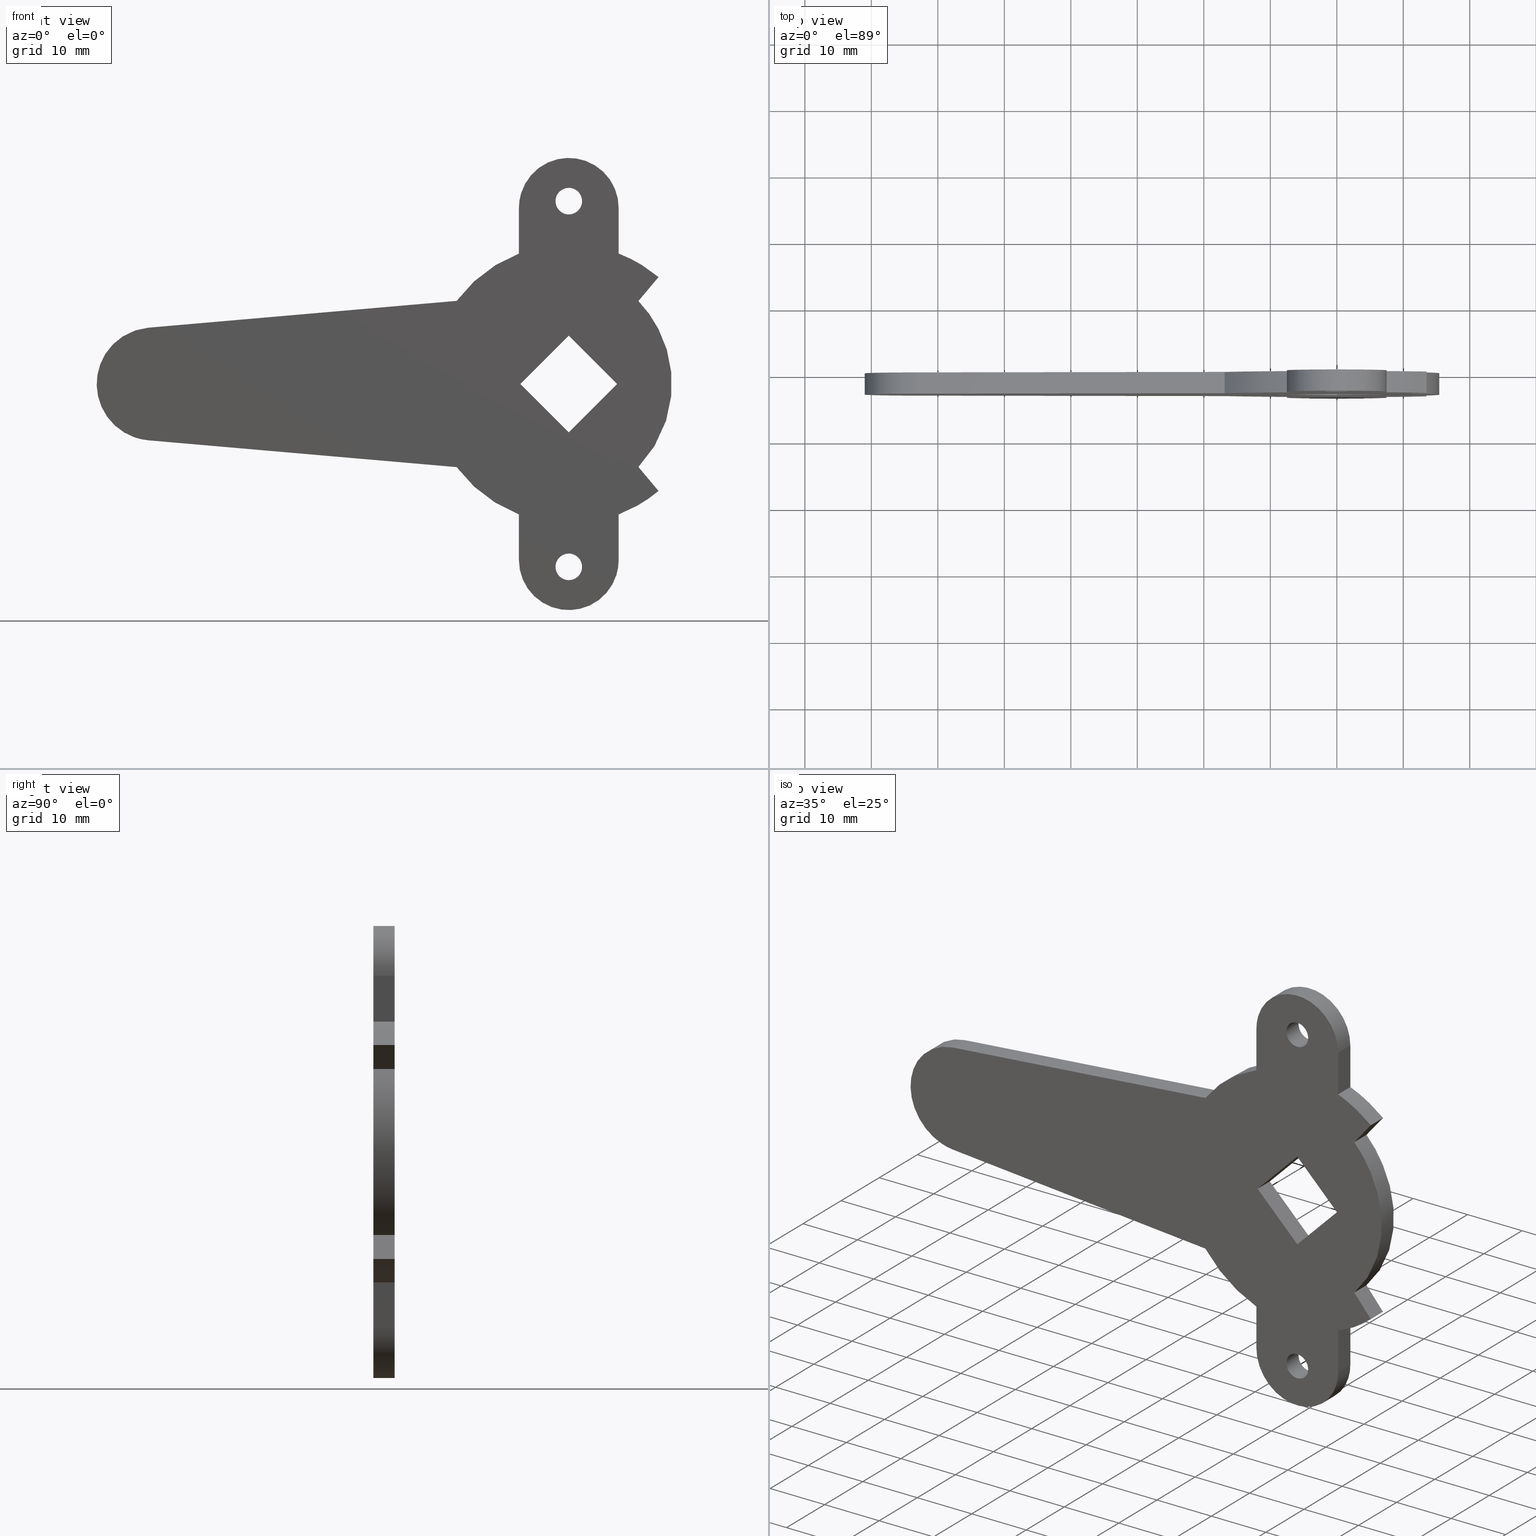
[diagram: canonical four-view strip — front | top / right | iso, engineering-drawing reading convention]
A machine part, canonical four-view strip (front | top / right | iso — engineering-drawing reading convention). The complete STEP part file that produces these views, byte-faithful:
ISO-10303-21;
HEADER;
/****************************************************************
 * Generated by software with PDE/Lib inside                    *
 * PDElib Version 4.4.1-0003, patched  Thursday August 19 11:58 *
 * International Technegroup Inc. (www.iti-oh.com)              *
 ****************************************************************/
FILE_DESCRIPTION((''),'2;1');
FILE_NAME('','2005-10-12T14:38:55',(''),(''),'','CADfix','');
FILE_SCHEMA(('AUTOMOTIVE_DESIGN'));
ENDSEC;
DATA;
#5=APPLICATION_CONTEXT('automotive design');
#6=APPLICATION_PROTOCOL_DEFINITION('Draft International Standard','automotive_design',1998,#5);
#7=PRODUCT_CONTEXT('None',#5,'mechanical');
#8=PRODUCT('cam','','None',(#7));
#9=PRODUCT_RELATED_PRODUCT_CATEGORY('part','description',(#8));
#10=PRODUCT_DEFINITION_FORMATION('None','None',#8);
#11=PRODUCT_DEFINITION_CONTEXT('part definition',#5,'design');
#12=PRODUCT_DEFINITION('None','None',#10,#11);
#18=(NAMED_UNIT(*)PLANE_ANGLE_UNIT()SI_UNIT($,.RADIAN.));
#19=DIMENSIONAL_EXPONENTS(0.0,0.0,0.0,0.0,0.0,0.0,0.0);
#20=PLANE_ANGLE_MEASURE_WITH_UNIT(PLANE_ANGLE_MEASURE(0.017453292500000),#18);
#24=(CONVERSION_BASED_UNIT('DEGREE',#20)NAMED_UNIT(#19)PLANE_ANGLE_UNIT());
#28=(NAMED_UNIT(*)SI_UNIT($,.STERADIAN.)SOLID_ANGLE_UNIT());
#32=(LENGTH_UNIT()NAMED_UNIT(*)SI_UNIT(.MILLI.,.METRE.));
#34=UNCERTAINTY_MEASURE_WITH_UNIT(LENGTH_MEASURE(0.001000000000000),#32,'DISTANCE_ACCURACY_VALUE','');
#36=(GEOMETRIC_REPRESENTATION_CONTEXT(3)GLOBAL_UNCERTAINTY_ASSIGNED_CONTEXT((#34))GLOBAL_UNIT_ASSIGNED_CONTEXT((#24,#28,#32))REPRESENTATION_CONTEXT('None','None'));
#37=AXIS2_PLACEMENT_3D('',#38,#39,#40);
#38=CARTESIAN_POINT('',(0.0,0.0,0.0));
#39=DIRECTION('',(0.0,0.0,1.0));
#40=DIRECTION('',(1.0,0.0,0.0));
#41=ADVANCED_BREP_SHAPE_REPRESENTATION('',(#37,#1277),#36);
#42=PRODUCT_DEFINITION_SHAPE('','',#12);
#43=SHAPE_DEFINITION_REPRESENTATION(#42,#41);
#44=CARTESIAN_POINT('',(-1.993834667466255,-3.279997950000036,27.656918191455691));
#45=CARTESIAN_POINT('',(-1.836916476010564,-3.279997950000036,29.650752858921944));
#46=CARTESIAN_POINT('',(0.156918191455691,-3.279997950000036,29.493834667466260));
#47=CARTESIAN_POINT('',(2.150752858921946,-3.279997950000036,29.336916476010572));
#48=CARTESIAN_POINT('',(1.993834667466255,-3.279997950000036,27.343081808544309));
#49=CARTESIAN_POINT('',(-1.993834667466255,0.081999948750001,27.656918191455691));
#50=CARTESIAN_POINT('',(-1.836916476010564,0.081999948750001,29.650752858921944));
#51=CARTESIAN_POINT('',(0.156918191455691,0.081999948750001,29.493834667466260));
#52=CARTESIAN_POINT('',(2.150752858921946,0.081999948750001,29.336916476010572));
#53=CARTESIAN_POINT('',(1.993834667466255,0.081999948750001,27.343081808544309));
#61=(BOUNDED_SURFACE()B_SPLINE_SURFACE(2,1,((#44,#49),(#45,#50),(#46,#51),(#47,#52),(#48,#53)),.UNSPECIFIED.,.F.,.F.,.U.)B_SPLINE_SURFACE_WITH_KNOTS((3,2,3),(2,2),(0.0,3.313708498984760,6.627416997969521),(0.0,3.361997898750038),.UNSPECIFIED.)GEOMETRIC_REPRESENTATION_ITEM()RATIONAL_B_SPLINE_SURFACE(((1.0,1.0),(0.707106781186548,0.707106781186548),(1.0,1.0),(0.707106781186548,0.707106781186548),(1.0,1.0)))REPRESENTATION_ITEM('')SURFACE());
#62=CARTESIAN_POINT('',(0.0,0.0,29.500000000000000));
#63=VERTEX_POINT('',#62);
#64=CARTESIAN_POINT('',(-1.993834667457113,1.665335E-016,27.656918191571862));
#65=VERTEX_POINT('',#64);
#66=CARTESIAN_POINT('',(0.0,0.0,29.500000000000000));
#67=CARTESIAN_POINT('',(-1.848780983100310,0.0,29.499999999999993));
#68=CARTESIAN_POINT('',(-1.993834667457113,1.665335E-016,27.656918191571865));
#76=(BOUNDED_CURVE()B_SPLINE_CURVE(2,(#66,#67,#68),.UNSPECIFIED.,.F.,.U.)B_SPLINE_CURVE_WITH_KNOTS((3,3),(0.0,0.236331300612791),.UNSPECIFIED.)CURVE()GEOMETRIC_REPRESENTATION_ITEM()RATIONAL_B_SPLINE_CURVE((1.0,0.723120658628600,0.969723356130127))REPRESENTATION_ITEM(''));
#77=EDGE_CURVE('',#63,#65,#76,.T.);
#78=ORIENTED_EDGE('',*,*,#77,.F.);
#79=CARTESIAN_POINT('',(1.993834667457113,1.665335E-016,27.343081808428138));
#80=VERTEX_POINT('',#79);
#81=CARTESIAN_POINT('',(1.993834667457113,1.665335E-016,27.343081808428142));
#82=CARTESIAN_POINT('',(2.000000000000000,0.0,27.421419785867950));
#83=CARTESIAN_POINT('',(2.0,0.0,27.500000000000000));
#84=CARTESIAN_POINT('',(2.000000000000000,0.0,29.499999999999996));
#85=CARTESIAN_POINT('',(0.0,0.0,29.500000000000000));
#93=(BOUNDED_CURVE()B_SPLINE_CURVE(2,(#81,#82,#83,#84,#85),.UNSPECIFIED.,.F.,.U.)B_SPLINE_CURVE_WITH_KNOTS((3,2,3),(0.736331300612791,0.750000000000000,1.0),.UNSPECIFIED.)CURVE()GEOMETRIC_REPRESENTATION_ITEM()RATIONAL_B_SPLINE_CURVE((0.969723356130127,0.983986122557947,1.0,0.707106781186548,1.0))REPRESENTATION_ITEM(''));
#94=EDGE_CURVE('',#80,#63,#93,.T.);
#95=ORIENTED_EDGE('',*,*,#94,.F.);
#96=CARTESIAN_POINT('',(1.993834667457113,-3.199998000000035,27.343081808428138));
#97=VERTEX_POINT('',#96);
#98=CARTESIAN_POINT('',(1.993834667457113,-3.199998000000035,27.343081808428138));
#99=CARTESIAN_POINT('',(1.993834667457113,1.665335E-016,27.343081808428138));
#100=QUASI_UNIFORM_CURVE('',1,(#98,#99),.UNSPECIFIED.,.F.,.U.);
#101=EDGE_CURVE('',#97,#80,#100,.T.);
#102=ORIENTED_EDGE('',*,*,#101,.F.);
#103=CARTESIAN_POINT('',(0.0,-3.199998000000035,29.500000000000000));
#104=VERTEX_POINT('',#103);
#105=CARTESIAN_POINT('',(1.993834667457112,-3.199998000000035,27.343081808428135));
#106=CARTESIAN_POINT('',(2.0,-3.199998000000035,27.421419785867954));
#107=CARTESIAN_POINT('',(2.0,-3.199998000000035,27.500000000000000));
#108=CARTESIAN_POINT('',(2.000000000000000,-3.199998000000036,29.499999999999996));
#109=CARTESIAN_POINT('',(0.0,-3.199998000000035,29.500000000000000));
#117=(BOUNDED_CURVE()B_SPLINE_CURVE(2,(#105,#106,#107,#108,#109),.UNSPECIFIED.,.F.,.U.)B_SPLINE_CURVE_WITH_KNOTS((3,2,3),(0.736331300612791,0.750000000000000,1.0),.UNSPECIFIED.)CURVE()GEOMETRIC_REPRESENTATION_ITEM()RATIONAL_B_SPLINE_CURVE((0.969723356130127,0.983986122557947,1.0,0.707106781186548,1.0))REPRESENTATION_ITEM(''));
#118=EDGE_CURVE('',#97,#104,#117,.T.);
#119=ORIENTED_EDGE('',*,*,#118,.T.);
#120=CARTESIAN_POINT('',(-1.993834667457113,-3.199998000000035,27.656918191571862));
#121=VERTEX_POINT('',#120);
#122=CARTESIAN_POINT('',(0.0,-3.199998000000035,29.500000000000000));
#123=CARTESIAN_POINT('',(-1.848780983100313,-3.199998000000035,29.499999999999993));
#124=CARTESIAN_POINT('',(-1.993834667457113,-3.199998000000035,27.656918191571858));
#132=(BOUNDED_CURVE()B_SPLINE_CURVE(2,(#122,#123,#124),.UNSPECIFIED.,.F.,.U.)B_SPLINE_CURVE_WITH_KNOTS((3,3),(0.0,0.236331300612791),.UNSPECIFIED.)CURVE()GEOMETRIC_REPRESENTATION_ITEM()RATIONAL_B_SPLINE_CURVE((1.0,0.723120658628600,0.969723356130128))REPRESENTATION_ITEM(''));
#133=EDGE_CURVE('',#104,#121,#132,.T.);
#134=ORIENTED_EDGE('',*,*,#133,.T.);
#135=CARTESIAN_POINT('',(-1.993834667457113,-3.199998000000035,27.656918191571862));
#136=CARTESIAN_POINT('',(-1.993834667457113,1.665335E-016,27.656918191571862));
#137=QUASI_UNIFORM_CURVE('',1,(#135,#136),.UNSPECIFIED.,.F.,.U.);
#138=EDGE_CURVE('',#121,#65,#137,.T.);
#139=ORIENTED_EDGE('',*,*,#138,.T.);
#140=EDGE_LOOP('',(#78,#95,#102,#119,#134,#139));
#141=FACE_OUTER_BOUND('',#140,.T.);
#142=ADVANCED_FACE('',(#141),#61,.F.);
#143=CARTESIAN_POINT('',(1.993834667466255,-3.279997950000036,27.343081808544309));
#144=CARTESIAN_POINT('',(1.836916476010564,-3.279997950000036,25.349247141078060));
#145=CARTESIAN_POINT('',(-0.156918191455691,-3.279997950000036,25.506165332533740));
#146=CARTESIAN_POINT('',(-2.150752858921946,-3.279997950000036,25.663083523989432));
#147=CARTESIAN_POINT('',(-1.993834667466255,-3.279997950000036,27.656918191455691));
#148=CARTESIAN_POINT('',(1.993834667466255,0.081999948750001,27.343081808544309));
#149=CARTESIAN_POINT('',(1.836916476010564,0.081999948750001,25.349247141078060));
#150=CARTESIAN_POINT('',(-0.156918191455691,0.081999948750001,25.506165332533740));
#151=CARTESIAN_POINT('',(-2.150752858921946,0.081999948750001,25.663083523989432));
#152=CARTESIAN_POINT('',(-1.993834667466255,0.081999948750001,27.656918191455691));
#160=(BOUNDED_SURFACE()B_SPLINE_SURFACE(2,1,((#143,#148),(#144,#149),(#145,#150),(#146,#151),(#147,#152)),.UNSPECIFIED.,.F.,.F.,.U.)B_SPLINE_SURFACE_WITH_KNOTS((3,2,3),(2,2),(0.0,3.313708498984760,6.627416997969521),(0.0,3.361997898750038),.UNSPECIFIED.)GEOMETRIC_REPRESENTATION_ITEM()RATIONAL_B_SPLINE_SURFACE(((1.0,1.0),(0.707106781186548,0.707106781186548),(1.0,1.0),(0.707106781186548,0.707106781186548),(1.0,1.0)))REPRESENTATION_ITEM('')SURFACE());
#161=CARTESIAN_POINT('',(0.0,0.0,25.500000000000000));
#162=VERTEX_POINT('',#161);
#163=CARTESIAN_POINT('',(-1.993834667457113,1.665335E-016,27.656918191571858));
#164=CARTESIAN_POINT('',(-2.000000000000000,0.0,27.578580214132053));
#165=CARTESIAN_POINT('',(-2.0,0.0,27.500000000000000));
#166=CARTESIAN_POINT('',(-2.000000000000000,0.0,25.500000000000007));
#167=CARTESIAN_POINT('',(0.0,0.0,25.500000000000000));
#175=(BOUNDED_CURVE()B_SPLINE_CURVE(2,(#163,#164,#165,#166,#167),.UNSPECIFIED.,.F.,.U.)B_SPLINE_CURVE_WITH_KNOTS((3,2,3),(0.236331300612791,0.250000000000000,0.500000000000000),.UNSPECIFIED.)CURVE()GEOMETRIC_REPRESENTATION_ITEM()RATIONAL_B_SPLINE_CURVE((0.969723356130127,0.983986122557947,1.0,0.707106781186548,1.0))REPRESENTATION_ITEM(''));
#176=EDGE_CURVE('',#65,#162,#175,.T.);
#177=ORIENTED_EDGE('',*,*,#176,.F.);
#178=ORIENTED_EDGE('',*,*,#138,.F.);
#179=CARTESIAN_POINT('',(0.0,-3.199998000000035,25.500000000000000));
#180=VERTEX_POINT('',#179);
#181=CARTESIAN_POINT('',(-1.993834667457113,-3.199998000000035,27.656918191571858));
#182=CARTESIAN_POINT('',(-2.000000000000000,-3.199998000000035,27.578580214132046));
#183=CARTESIAN_POINT('',(-2.0,-3.199998000000035,27.500000000000000));
#184=CARTESIAN_POINT('',(-2.000000000000000,-3.199998000000036,25.500000000000007));
#185=CARTESIAN_POINT('',(0.0,-3.199998000000035,25.500000000000000));
#193=(BOUNDED_CURVE()B_SPLINE_CURVE(2,(#181,#182,#183,#184,#185),.UNSPECIFIED.,.F.,.U.)B_SPLINE_CURVE_WITH_KNOTS((3,2,3),(0.236331300612791,0.250000000000000,0.500000000000000),.UNSPECIFIED.)CURVE()GEOMETRIC_REPRESENTATION_ITEM()RATIONAL_B_SPLINE_CURVE((0.969723356130128,0.983986122557948,1.0,0.707106781186548,1.0))REPRESENTATION_ITEM(''));
#194=EDGE_CURVE('',#121,#180,#193,.T.);
#195=ORIENTED_EDGE('',*,*,#194,.T.);
#196=CARTESIAN_POINT('',(0.0,-3.199998000000035,25.500000000000000));
#197=CARTESIAN_POINT('',(1.848780983100312,-3.199998000000035,25.499999999999996));
#198=CARTESIAN_POINT('',(1.993834667457112,-3.199998000000035,27.343081808428135));
#206=(BOUNDED_CURVE()B_SPLINE_CURVE(2,(#196,#197,#198),.UNSPECIFIED.,.F.,.U.)B_SPLINE_CURVE_WITH_KNOTS((3,3),(0.500000000000000,0.736331300612791),.UNSPECIFIED.)CURVE()GEOMETRIC_REPRESENTATION_ITEM()RATIONAL_B_SPLINE_CURVE((1.0,0.723120658628600,0.969723356130127))REPRESENTATION_ITEM(''));
#207=EDGE_CURVE('',#180,#97,#206,.T.);
#208=ORIENTED_EDGE('',*,*,#207,.T.);
#209=ORIENTED_EDGE('',*,*,#101,.T.);
#210=CARTESIAN_POINT('',(0.0,0.0,25.500000000000000));
#211=CARTESIAN_POINT('',(1.848780983100312,0.0,25.499999999999996));
#212=CARTESIAN_POINT('',(1.993834667457112,1.665335E-016,27.343081808428135));
#220=(BOUNDED_CURVE()B_SPLINE_CURVE(2,(#210,#211,#212),.UNSPECIFIED.,.F.,.U.)B_SPLINE_CURVE_WITH_KNOTS((3,3),(0.500000000000000,0.736331300612791),.UNSPECIFIED.)CURVE()GEOMETRIC_REPRESENTATION_ITEM()RATIONAL_B_SPLINE_CURVE((1.0,0.723120658628600,0.969723356130127))REPRESENTATION_ITEM(''));
#221=EDGE_CURVE('',#162,#80,#220,.T.);
#222=ORIENTED_EDGE('',*,*,#221,.F.);
#223=EDGE_LOOP('',(#177,#178,#195,#208,#209,#222));
#224=FACE_OUTER_BOUND('',#223,.T.);
#225=ADVANCED_FACE('',(#224),#160,.F.);
#226=CARTESIAN_POINT('',(-1.993834667466255,-3.279997950000036,-27.343381808544311));
#227=CARTESIAN_POINT('',(-1.836916476010564,-3.279997950000036,-25.349547141078048));
#228=CARTESIAN_POINT('',(0.156918191455691,-3.279997950000036,-25.506465332533740));
#229=CARTESIAN_POINT('',(2.150752858921946,-3.279997950000036,-25.663383523989438));
#230=CARTESIAN_POINT('',(1.993834667466255,-3.279997950000036,-27.657218191455691));
#231=CARTESIAN_POINT('',(-1.993834667466255,0.081999948750001,-27.343381808544311));
#232=CARTESIAN_POINT('',(-1.836916476010564,0.081999948750001,-25.349547141078048));
#233=CARTESIAN_POINT('',(0.156918191455691,0.081999948750001,-25.506465332533740));
#234=CARTESIAN_POINT('',(2.150752858921946,0.081999948750001,-25.663383523989438));
#235=CARTESIAN_POINT('',(1.993834667466255,0.081999948750001,-27.657218191455691));
#243=(BOUNDED_SURFACE()B_SPLINE_SURFACE(2,1,((#226,#231),(#227,#232),(#228,#233),(#229,#234),(#230,#235)),.UNSPECIFIED.,.F.,.F.,.U.)B_SPLINE_SURFACE_WITH_KNOTS((3,2,3),(2,2),(0.0,3.313708498984760,6.627416997969521),(0.0,3.361997898750038),.UNSPECIFIED.)GEOMETRIC_REPRESENTATION_ITEM()RATIONAL_B_SPLINE_SURFACE(((1.0,1.0),(0.707106781186548,0.707106781186548),(1.0,1.0),(0.707106781186548,0.707106781186548),(1.0,1.0)))REPRESENTATION_ITEM('')SURFACE());
#244=CARTESIAN_POINT('',(0.0,0.0,-25.500299999999999));
#245=VERTEX_POINT('',#244);
#246=CARTESIAN_POINT('',(-1.993834667457113,1.665335E-016,-27.343381808428131));
#247=VERTEX_POINT('',#246);
#248=CARTESIAN_POINT('',(0.0,0.0,-25.500299999999999));
#249=CARTESIAN_POINT('',(-1.848780983100306,0.0,-25.500299999999992));
#250=CARTESIAN_POINT('',(-1.993834667457112,1.665335E-016,-27.343381808428134));
#258=(BOUNDED_CURVE()B_SPLINE_CURVE(2,(#248,#249,#250),.UNSPECIFIED.,.F.,.U.)B_SPLINE_CURVE_WITH_KNOTS((3,3),(0.0,0.236331300612790),.UNSPECIFIED.)CURVE()GEOMETRIC_REPRESENTATION_ITEM()RATIONAL_B_SPLINE_CURVE((1.0,0.723120658628601,0.969723356130126))REPRESENTATION_ITEM(''));
#259=EDGE_CURVE('',#245,#247,#258,.T.);
#260=ORIENTED_EDGE('',*,*,#259,.F.);
#261=CARTESIAN_POINT('',(1.993834667457113,1.665335E-016,-27.657218191571861));
#262=VERTEX_POINT('',#261);
#263=CARTESIAN_POINT('',(1.993834667457113,1.665335E-016,-27.657218191571861));
#264=CARTESIAN_POINT('',(2.000000000000000,0.0,-27.578880214132052));
#265=CARTESIAN_POINT('',(2.0,0.0,-27.500299999999999));
#266=CARTESIAN_POINT('',(2.000000000000000,0.0,-25.500299999999989));
#267=CARTESIAN_POINT('',(0.0,0.0,-25.500299999999999));
#275=(BOUNDED_CURVE()B_SPLINE_CURVE(2,(#263,#264,#265,#266,#267),.UNSPECIFIED.,.F.,.U.)B_SPLINE_CURVE_WITH_KNOTS((3,2,3),(0.736331300612791,0.750000000000000,1.0),.UNSPECIFIED.)CURVE()GEOMETRIC_REPRESENTATION_ITEM()RATIONAL_B_SPLINE_CURVE((0.969723356130127,0.983986122557947,1.0,0.707106781186548,1.0))REPRESENTATION_ITEM(''));
#276=EDGE_CURVE('',#262,#245,#275,.T.);
#277=ORIENTED_EDGE('',*,*,#276,.F.);
#278=CARTESIAN_POINT('',(1.993834667457113,-3.199998000000035,-27.657218191571861));
#279=VERTEX_POINT('',#278);
#280=CARTESIAN_POINT('',(1.993834667457113,-3.199998000000035,-27.657218191571861));
#281=CARTESIAN_POINT('',(1.993834667457113,1.665335E-016,-27.657218191571861));
#282=QUASI_UNIFORM_CURVE('',1,(#280,#281),.UNSPECIFIED.,.F.,.U.);
#283=EDGE_CURVE('',#279,#262,#282,.T.);
#284=ORIENTED_EDGE('',*,*,#283,.F.);
#285=CARTESIAN_POINT('',(0.0,-3.199998000000035,-25.500299999999999));
#286=VERTEX_POINT('',#285);
#287=CARTESIAN_POINT('',(1.993834667457112,-3.199998000000035,-27.657218191571861));
#288=CARTESIAN_POINT('',(2.0,-3.199998000000035,-27.578880214132049));
#289=CARTESIAN_POINT('',(2.0,-3.199998000000035,-27.500299999999999));
#290=CARTESIAN_POINT('',(2.000000000000000,-3.199998000000036,-25.500299999999989));
#291=CARTESIAN_POINT('',(0.0,-3.199998000000035,-25.500299999999999));
#299=(BOUNDED_CURVE()B_SPLINE_CURVE(2,(#287,#288,#289,#290,#291),.UNSPECIFIED.,.F.,.U.)B_SPLINE_CURVE_WITH_KNOTS((3,2,3),(0.736331300612791,0.750000000000000,1.0),.UNSPECIFIED.)CURVE()GEOMETRIC_REPRESENTATION_ITEM()RATIONAL_B_SPLINE_CURVE((0.969723356130127,0.983986122557947,1.0,0.707106781186548,1.0))REPRESENTATION_ITEM(''));
#300=EDGE_CURVE('',#279,#286,#299,.T.);
#301=ORIENTED_EDGE('',*,*,#300,.T.);
#302=CARTESIAN_POINT('',(-1.993834667457113,-3.199998000000035,-27.343381808428141));
#303=VERTEX_POINT('',#302);
#304=CARTESIAN_POINT('',(0.0,-3.199998000000035,-25.500299999999999));
#305=CARTESIAN_POINT('',(-1.848780983100313,-3.199998000000035,-25.500299999999996));
#306=CARTESIAN_POINT('',(-1.993834667457113,-3.199998000000035,-27.343381808428138));
#314=(BOUNDED_CURVE()B_SPLINE_CURVE(2,(#304,#305,#306),.UNSPECIFIED.,.F.,.U.)B_SPLINE_CURVE_WITH_KNOTS((3,3),(0.0,0.236331300612791),.UNSPECIFIED.)CURVE()GEOMETRIC_REPRESENTATION_ITEM()RATIONAL_B_SPLINE_CURVE((1.0,0.723120658628600,0.969723356130128))REPRESENTATION_ITEM(''));
#315=EDGE_CURVE('',#286,#303,#314,.T.);
#316=ORIENTED_EDGE('',*,*,#315,.T.);
#317=CARTESIAN_POINT('',(-1.993834667457113,-3.199998000000035,-27.343381808428141));
#318=CARTESIAN_POINT('',(-1.993834667457113,1.665335E-016,-27.343381808428131));
#319=QUASI_UNIFORM_CURVE('',1,(#317,#318),.UNSPECIFIED.,.F.,.U.);
#320=EDGE_CURVE('',#303,#247,#319,.T.);
#321=ORIENTED_EDGE('',*,*,#320,.T.);
#322=EDGE_LOOP('',(#260,#277,#284,#301,#316,#321));
#323=FACE_OUTER_BOUND('',#322,.T.);
#324=ADVANCED_FACE('',(#323),#243,.F.);
#325=CARTESIAN_POINT('',(1.993834667466255,-3.279997950000036,-27.657218191455691));
#326=CARTESIAN_POINT('',(1.836916476010564,-3.279997950000036,-29.651052858921950));
#327=CARTESIAN_POINT('',(-0.156918191455691,-3.279997950000036,-29.494134667466259));
#328=CARTESIAN_POINT('',(-2.150752858921946,-3.279997950000036,-29.337216476010568));
#329=CARTESIAN_POINT('',(-1.993834667466255,-3.279997950000036,-27.343381808544311));
#330=CARTESIAN_POINT('',(1.993834667466255,0.081999948750001,-27.657218191455691));
#331=CARTESIAN_POINT('',(1.836916476010564,0.081999948750001,-29.651052858921950));
#332=CARTESIAN_POINT('',(-0.156918191455691,0.081999948750001,-29.494134667466259));
#333=CARTESIAN_POINT('',(-2.150752858921946,0.081999948750001,-29.337216476010568));
#334=CARTESIAN_POINT('',(-1.993834667466255,0.081999948750001,-27.343381808544311));
#342=(BOUNDED_SURFACE()B_SPLINE_SURFACE(2,1,((#325,#330),(#326,#331),(#327,#332),(#328,#333),(#329,#334)),.UNSPECIFIED.,.F.,.F.,.U.)B_SPLINE_SURFACE_WITH_KNOTS((3,2,3),(2,2),(0.0,3.313708498984760,6.627416997969521),(0.0,3.361997898750038),.UNSPECIFIED.)GEOMETRIC_REPRESENTATION_ITEM()RATIONAL_B_SPLINE_SURFACE(((1.0,1.0),(0.707106781186548,0.707106781186548),(1.0,1.0),(0.707106781186548,0.707106781186548),(1.0,1.0)))REPRESENTATION_ITEM('')SURFACE());
#343=CARTESIAN_POINT('',(0.0,0.0,-29.500299999999999));
#344=VERTEX_POINT('',#343);
#345=CARTESIAN_POINT('',(-1.993834667457112,1.665335E-016,-27.343381808428134));
#346=CARTESIAN_POINT('',(-2.000000000000000,0.0,-27.421719785867950));
#347=CARTESIAN_POINT('',(-2.0,0.0,-27.500299999999999));
#348=CARTESIAN_POINT('',(-2.000000000000000,0.0,-29.500299999999999));
#349=CARTESIAN_POINT('',(0.0,0.0,-29.500299999999999));
#357=(BOUNDED_CURVE()B_SPLINE_CURVE(2,(#345,#346,#347,#348,#349),.UNSPECIFIED.,.F.,.U.)B_SPLINE_CURVE_WITH_KNOTS((3,2,3),(0.236331300612791,0.250000000000000,0.500000000000000),.UNSPECIFIED.)CURVE()GEOMETRIC_REPRESENTATION_ITEM()RATIONAL_B_SPLINE_CURVE((0.969723356130126,0.983986122557947,1.0,0.707106781186548,1.0))REPRESENTATION_ITEM(''));
#358=EDGE_CURVE('',#247,#344,#357,.T.);
#359=ORIENTED_EDGE('',*,*,#358,.F.);
#360=ORIENTED_EDGE('',*,*,#320,.F.);
#361=CARTESIAN_POINT('',(0.0,-3.199998000000035,-29.500299999999999));
#362=VERTEX_POINT('',#361);
#363=CARTESIAN_POINT('',(-1.993834667457113,-3.199998000000035,-27.343381808428145));
#364=CARTESIAN_POINT('',(-2.000000000000000,-3.199998000000035,-27.421719785867946));
#365=CARTESIAN_POINT('',(-2.0,-3.199998000000035,-27.500299999999999));
#366=CARTESIAN_POINT('',(-2.000000000000000,-3.199998000000036,-29.500299999999999));
#367=CARTESIAN_POINT('',(0.0,-3.199998000000035,-29.500299999999999));
#375=(BOUNDED_CURVE()B_SPLINE_CURVE(2,(#363,#364,#365,#366,#367),.UNSPECIFIED.,.F.,.U.)B_SPLINE_CURVE_WITH_KNOTS((3,2,3),(0.236331300612791,0.250000000000000,0.500000000000000),.UNSPECIFIED.)CURVE()GEOMETRIC_REPRESENTATION_ITEM()RATIONAL_B_SPLINE_CURVE((0.969723356130128,0.983986122557948,1.0,0.707106781186548,1.0))REPRESENTATION_ITEM(''));
#376=EDGE_CURVE('',#303,#362,#375,.T.);
#377=ORIENTED_EDGE('',*,*,#376,.T.);
#378=CARTESIAN_POINT('',(0.0,-3.199998000000035,-29.500299999999999));
#379=CARTESIAN_POINT('',(1.848780983100312,-3.199998000000035,-29.500299999999999));
#380=CARTESIAN_POINT('',(1.993834667457112,-3.199998000000035,-27.657218191571861));
#388=(BOUNDED_CURVE()B_SPLINE_CURVE(2,(#378,#379,#380),.UNSPECIFIED.,.F.,.U.)B_SPLINE_CURVE_WITH_KNOTS((3,3),(0.500000000000000,0.736331300612791),.UNSPECIFIED.)CURVE()GEOMETRIC_REPRESENTATION_ITEM()RATIONAL_B_SPLINE_CURVE((1.0,0.723120658628600,0.969723356130127))REPRESENTATION_ITEM(''));
#389=EDGE_CURVE('',#362,#279,#388,.T.);
#390=ORIENTED_EDGE('',*,*,#389,.T.);
#391=ORIENTED_EDGE('',*,*,#283,.T.);
#392=CARTESIAN_POINT('',(0.0,0.0,-29.500299999999999));
#393=CARTESIAN_POINT('',(1.848780983100312,0.0,-29.500299999999999));
#394=CARTESIAN_POINT('',(1.993834667457112,1.665335E-016,-27.657218191571861));
#402=(BOUNDED_CURVE()B_SPLINE_CURVE(2,(#392,#393,#394),.UNSPECIFIED.,.F.,.U.)B_SPLINE_CURVE_WITH_KNOTS((3,3),(0.500000000000000,0.736331300612791),.UNSPECIFIED.)CURVE()GEOMETRIC_REPRESENTATION_ITEM()RATIONAL_B_SPLINE_CURVE((1.0,0.723120658628600,0.969723356130127))REPRESENTATION_ITEM(''));
#403=EDGE_CURVE('',#344,#262,#402,.T.);
#404=ORIENTED_EDGE('',*,*,#403,.F.);
#405=EDGE_LOOP('',(#359,#360,#377,#390,#391,#404));
#406=FACE_OUTER_BOUND('',#405,.T.);
#407=ADVANCED_FACE('',(#406),#342,.F.);
#408=CARTESIAN_POINT('',(-75.320867146757635,0.0,37.396599868202770));
#409=CARTESIAN_POINT('',(19.820686301534451,0.0,37.396599868202770));
#410=CARTESIAN_POINT('',(-75.320867146757635,0.0,-37.396601692104902));
#411=CARTESIAN_POINT('',(19.820686301534451,0.0,-37.396601692104902));
#412=B_SPLINE_SURFACE_WITH_KNOTS('',1,1,((#408,#410),(#409,#411)),.UNSPECIFIED.,.F.,.F.,.U.,(2,2),(2,2),(0.0,95.141553448292086),(0.0,74.793201560307665),.UNSPECIFIED.);
#413=CARTESIAN_POINT('',(-7.500000000000090,0.0,19.615045245933000));
#414=VERTEX_POINT('',#413);
#415=CARTESIAN_POINT('',(-16.874539580484502,0.0,12.499996557866019));
#416=VERTEX_POINT('',#415);
#417=CARTESIAN_POINT('',(-7.500000000000096,0.0,19.615045245932990));
#418=CARTESIAN_POINT('',(-13.225728745875150,0.0,17.425758142301799));
#419=CARTESIAN_POINT('',(-16.874539580484491,0.0,12.499996557866019));
#427=(BOUNDED_CURVE()B_SPLINE_CURVE(2,(#417,#418,#419),.UNSPECIFIED.,.F.,.U.)CURVE()GEOMETRIC_REPRESENTATION_ITEM()QUASI_UNIFORM_CURVE()RATIONAL_B_SPLINE_CURVE((1.0,0.959938492992654,1.0))REPRESENTATION_ITEM(''));
#428=EDGE_CURVE('',#414,#416,#427,.T.);
#429=ORIENTED_EDGE('',*,*,#428,.F.);
#430=CARTESIAN_POINT('',(-7.500000000000000,0.0,26.500000000000000));
#431=VERTEX_POINT('',#430);
#432=CARTESIAN_POINT('',(-7.500000000000000,0.0,26.500000000000000));
#433=CARTESIAN_POINT('',(-7.500000000000090,0.0,19.615045245933000));
#434=QUASI_UNIFORM_CURVE('',1,(#432,#433),.UNSPECIFIED.,.F.,.U.);
#435=EDGE_CURVE('',#431,#414,#434,.T.);
#436=ORIENTED_EDGE('',*,*,#435,.F.);
#437=CARTESIAN_POINT('',(7.500000000000000,0.0,26.500000000000000));
#438=VERTEX_POINT('',#437);
#439=CARTESIAN_POINT('',(7.500000000000000,0.0,26.500000000000000));
#440=CARTESIAN_POINT('',(7.500000000000000,0.0,34.000000000000014));
#441=CARTESIAN_POINT('',(0.0,0.0,34.0));
#442=CARTESIAN_POINT('',(-7.500000000000000,0.0,34.000000000000014));
#443=CARTESIAN_POINT('',(-7.500000000000000,0.0,26.500000000000000));
#451=(BOUNDED_CURVE()B_SPLINE_CURVE(2,(#439,#440,#441,#442,#443),.UNSPECIFIED.,.F.,.U.)B_SPLINE_CURVE_WITH_KNOTS((3,2,3),(0.0,0.500000000000000,1.0),.UNSPECIFIED.)CURVE()GEOMETRIC_REPRESENTATION_ITEM()RATIONAL_B_SPLINE_CURVE((1.0,0.707106781186547,1.0,0.707106781186547,1.0))REPRESENTATION_ITEM(''));
#452=EDGE_CURVE('',#438,#431,#451,.T.);
#453=ORIENTED_EDGE('',*,*,#452,.F.);
#454=CARTESIAN_POINT('',(7.500000000000000,0.0,19.615045245933050));
#455=VERTEX_POINT('',#454);
#456=CARTESIAN_POINT('',(7.500000000000000,0.0,19.615045245933050));
#457=CARTESIAN_POINT('',(7.500000000000000,0.0,26.500000000000000));
#458=QUASI_UNIFORM_CURVE('',1,(#456,#457),.UNSPECIFIED.,.F.,.U.);
#459=EDGE_CURVE('',#455,#438,#458,.T.);
#460=ORIENTED_EDGE('',*,*,#459,.F.);
#461=CARTESIAN_POINT('',(13.498542287232841,0.0,16.086931221329500));
#462=VERTEX_POINT('',#461);
#463=CARTESIAN_POINT('',(13.498542287232860,0.0,16.086931221329511));
#464=CARTESIAN_POINT('',(10.795662874059836,0.0,18.354917051195695));
#465=CARTESIAN_POINT('',(7.499999999999997,0.0,19.615045245933040));
#473=(BOUNDED_CURVE()B_SPLINE_CURVE(2,(#463,#464,#465),.UNSPECIFIED.,.F.,.U.)CURVE()GEOMETRIC_REPRESENTATION_ITEM()QUASI_UNIFORM_CURVE()RATIONAL_B_SPLINE_CURVE((1.0,0.986177111799744,1.0))REPRESENTATION_ITEM(''));
#474=EDGE_CURVE('',#462,#455,#473,.T.);
#475=ORIENTED_EDGE('',*,*,#474,.F.);
#476=CARTESIAN_POINT('',(10.471549311861420,0.0,12.479539592867400));
#477=VERTEX_POINT('',#476);
#478=CARTESIAN_POINT('',(10.471549311861420,0.0,12.479539592867400));
#479=CARTESIAN_POINT('',(13.498542287232841,0.0,16.086931221329500));
#480=QUASI_UNIFORM_CURVE('',1,(#478,#479),.UNSPECIFIED.,.F.,.U.);
#481=EDGE_CURVE('',#477,#462,#480,.T.);
#482=ORIENTED_EDGE('',*,*,#481,.F.);
#483=CARTESIAN_POINT('',(10.471594131394641,0.0,-12.479493006142739));
#484=VERTEX_POINT('',#483);
#485=CARTESIAN_POINT('',(10.471594131394641,0.0,-12.479493006142750));
#486=CARTESIAN_POINT('',(22.477697919114419,0.0,0.000044853050978));
#487=CARTESIAN_POINT('',(10.471549311861430,0.0,12.479539592867400));
#495=(BOUNDED_CURVE()B_SPLINE_CURVE(2,(#485,#486,#487),.UNSPECIFIED.,.F.,.U.)CURVE()GEOMETRIC_REPRESENTATION_ITEM()QUASI_UNIFORM_CURVE()RATIONAL_B_SPLINE_CURVE((1.0,0.720642873424946,1.0))REPRESENTATION_ITEM(''));
#496=EDGE_CURVE('',#484,#477,#495,.T.);
#497=ORIENTED_EDGE('',*,*,#496,.F.);
#498=CARTESIAN_POINT('',(13.498591527856259,0.0,-16.086889903399200));
#499=VERTEX_POINT('',#498);
#500=CARTESIAN_POINT('',(13.498591527856259,0.0,-16.086889903399200));
#501=CARTESIAN_POINT('',(10.471594131394641,0.0,-12.479493006142739));
#502=QUASI_UNIFORM_CURVE('',1,(#500,#501),.UNSPECIFIED.,.F.,.U.);
#503=EDGE_CURVE('',#499,#484,#502,.T.);
#504=ORIENTED_EDGE('',*,*,#503,.F.);
#505=CARTESIAN_POINT('',(7.500000000000000,0.0,-19.615045245933050));
#506=VERTEX_POINT('',#505);
#507=CARTESIAN_POINT('',(7.499999999999990,0.0,-19.615045245933040));
#508=CARTESIAN_POINT('',(10.795693741490979,0.0,-18.354905248738419));
#509=CARTESIAN_POINT('',(13.498591527856259,0.0,-16.086889903399200));
#517=(BOUNDED_CURVE()B_SPLINE_CURVE(2,(#507,#508,#509),.UNSPECIFIED.,.F.,.U.)CURVE()GEOMETRIC_REPRESENTATION_ITEM()QUASI_UNIFORM_CURVE()RATIONAL_B_SPLINE_CURVE((1.0,0.986176858210247,1.0))REPRESENTATION_ITEM(''));
#518=EDGE_CURVE('',#506,#499,#517,.T.);
#519=ORIENTED_EDGE('',*,*,#518,.F.);
#520=CARTESIAN_POINT('',(7.500000000000000,0.0,-26.500000000000000));
#521=VERTEX_POINT('',#520);
#522=CARTESIAN_POINT('',(7.500000000000000,0.0,-26.500000000000000));
#523=CARTESIAN_POINT('',(7.500000000000000,0.0,-19.615045245933050));
#524=QUASI_UNIFORM_CURVE('',1,(#522,#523),.UNSPECIFIED.,.F.,.U.);
#525=EDGE_CURVE('',#521,#506,#524,.T.);
#526=ORIENTED_EDGE('',*,*,#525,.F.);
#527=CARTESIAN_POINT('',(-7.500000000000090,0.0,-26.500000000000000));
#528=VERTEX_POINT('',#527);
#529=CARTESIAN_POINT('',(-7.500000000000000,0.0,-26.500000000000000));
#530=CARTESIAN_POINT('',(-7.500000000000000,0.0,-34.000000000000014));
#531=CARTESIAN_POINT('',(0.0,0.0,-34.0));
#532=CARTESIAN_POINT('',(7.500000000000000,0.0,-34.000000000000014));
#533=CARTESIAN_POINT('',(7.500000000000000,0.0,-26.500000000000000));
#541=(BOUNDED_CURVE()B_SPLINE_CURVE(2,(#529,#530,#531,#532,#533),.UNSPECIFIED.,.F.,.U.)B_SPLINE_CURVE_WITH_KNOTS((3,2,3),(0.0,0.500000000000000,1.0),.UNSPECIFIED.)CURVE()GEOMETRIC_REPRESENTATION_ITEM()RATIONAL_B_SPLINE_CURVE((1.0,0.707106781186547,1.0,0.707106781186547,1.0))REPRESENTATION_ITEM(''));
#542=EDGE_CURVE('',#528,#521,#541,.T.);
#543=ORIENTED_EDGE('',*,*,#542,.F.);
#544=CARTESIAN_POINT('',(-7.500000000000000,0.0,-19.615045245933000));
#545=VERTEX_POINT('',#544);
#546=CARTESIAN_POINT('',(-7.500000000000000,0.0,-19.615045245933000));
#547=CARTESIAN_POINT('',(-7.500000000000090,0.0,-26.500000000000000));
#548=QUASI_UNIFORM_CURVE('',1,(#546,#547),.UNSPECIFIED.,.F.,.U.);
#549=EDGE_CURVE('',#545,#528,#548,.T.);
#550=ORIENTED_EDGE('',*,*,#549,.F.);
#551=CARTESIAN_POINT('',(-16.874539580552000,0.0,-12.499996557774880));
#552=VERTEX_POINT('',#551);
#553=CARTESIAN_POINT('',(-16.874539580552000,0.0,-12.499996557774880));
#554=CARTESIAN_POINT('',(-13.225728745932608,0.0,-17.425758142279864));
#555=CARTESIAN_POINT('',(-7.500000000000012,0.0,-19.615045245933029));
#563=(BOUNDED_CURVE()B_SPLINE_CURVE(2,(#553,#554,#555),.UNSPECIFIED.,.F.,.U.)CURVE()GEOMETRIC_REPRESENTATION_ITEM()QUASI_UNIFORM_CURVE()RATIONAL_B_SPLINE_CURVE((1.0,0.959938492991896,1.0))REPRESENTATION_ITEM(''));
#564=EDGE_CURVE('',#552,#545,#563,.T.);
#565=ORIENTED_EDGE('',*,*,#564,.F.);
#566=CARTESIAN_POINT('',(-63.236599818682187,0.0,-8.468000015768769));
#567=VERTEX_POINT('',#566);
#568=CARTESIAN_POINT('',(-63.236599818682187,0.0,-8.468000015768769));
#569=CARTESIAN_POINT('',(-16.874539580552000,0.0,-12.499996557774880));
#570=QUASI_UNIFORM_CURVE('',1,(#568,#569),.UNSPECIFIED.,.F.,.U.);
#571=EDGE_CURVE('',#567,#552,#570,.T.);
#572=ORIENTED_EDGE('',*,*,#571,.F.);
#573=CARTESIAN_POINT('',(-63.236600000000003,0.0,8.468099999999890));
#574=VERTEX_POINT('',#573);
#575=CARTESIAN_POINT('',(-63.236600000000003,0.0,8.468099999999895));
#576=CARTESIAN_POINT('',(-71.000184022108911,0.0,7.792936570846801));
#577=CARTESIAN_POINT('',(-71.000183938678305,0.0,0.000049908998665));
#578=CARTESIAN_POINT('',(-71.000183855247698,0.0,-7.792836752849468));
#579=CARTESIAN_POINT('',(-63.236599818682187,0.0,-8.468000015768780));
#587=(BOUNDED_CURVE()B_SPLINE_CURVE(2,(#575,#576,#577,#578,#579),.UNSPECIFIED.,.F.,.U.)B_SPLINE_CURVE_WITH_KNOTS((3,2,3),(0.0,0.500000000000000,1.0),.UNSPECIFIED.)CURVE()GEOMETRIC_REPRESENTATION_ITEM()RATIONAL_B_SPLINE_CURVE((1.0,0.737101897522884,1.0,0.737101897522884,1.0))REPRESENTATION_ITEM(''));
#588=EDGE_CURVE('',#574,#567,#587,.T.);
#589=ORIENTED_EDGE('',*,*,#588,.F.);
#590=CARTESIAN_POINT('',(-16.874539580484502,0.0,12.499996557866019));
#591=CARTESIAN_POINT('',(-63.236600000000003,0.0,8.468099999999890));
#592=QUASI_UNIFORM_CURVE('',1,(#590,#591),.UNSPECIFIED.,.F.,.U.);
#593=EDGE_CURVE('',#416,#574,#592,.T.);
#594=ORIENTED_EDGE('',*,*,#593,.F.);
#595=EDGE_LOOP('',(#429,#436,#453,#460,#475,#482,#497,#504,#519,#526,#543,#550,#565,#572,#589,#594));
#596=FACE_OUTER_BOUND('',#595,.T.);
#597=CARTESIAN_POINT('',(7.283199999999800,0.0,0.0));
#598=VERTEX_POINT('',#597);
#599=CARTESIAN_POINT('',(0.0,0.0,-7.283200000000110));
#600=VERTEX_POINT('',#599);
#601=CARTESIAN_POINT('',(7.283199999999800,0.0,0.0));
#602=CARTESIAN_POINT('',(0.0,0.0,-7.283200000000110));
#603=QUASI_UNIFORM_CURVE('',1,(#601,#602),.UNSPECIFIED.,.F.,.U.);
#604=EDGE_CURVE('',#598,#600,#603,.T.);
#605=ORIENTED_EDGE('',*,*,#604,.F.);
#606=CARTESIAN_POINT('',(0.0,0.0,7.283199999999890));
#607=VERTEX_POINT('',#606);
#608=CARTESIAN_POINT('',(0.0,0.0,7.283199999999890));
#609=CARTESIAN_POINT('',(7.283199999999800,0.0,0.0));
#610=QUASI_UNIFORM_CURVE('',1,(#608,#609),.UNSPECIFIED.,.F.,.U.);
#611=EDGE_CURVE('',#607,#598,#610,.T.);
#612=ORIENTED_EDGE('',*,*,#611,.F.);
#613=CARTESIAN_POINT('',(-7.283200000000000,0.0,0.0));
#614=VERTEX_POINT('',#613);
#615=CARTESIAN_POINT('',(-7.283200000000000,0.0,0.0));
#616=CARTESIAN_POINT('',(0.0,0.0,7.283199999999890));
#617=QUASI_UNIFORM_CURVE('',1,(#615,#616),.UNSPECIFIED.,.F.,.U.);
#618=EDGE_CURVE('',#614,#607,#617,.T.);
#619=ORIENTED_EDGE('',*,*,#618,.F.);
#620=CARTESIAN_POINT('',(0.0,0.0,-7.283200000000110));
#621=CARTESIAN_POINT('',(-7.283200000000000,0.0,0.0));
#622=QUASI_UNIFORM_CURVE('',1,(#620,#621),.UNSPECIFIED.,.F.,.U.);
#623=EDGE_CURVE('',#600,#614,#622,.T.);
#624=ORIENTED_EDGE('',*,*,#623,.F.);
#625=EDGE_LOOP('',(#605,#612,#619,#624));
#626=FACE_BOUND('',#625,.T.);
#627=ORIENTED_EDGE('',*,*,#403,.T.);
#628=ORIENTED_EDGE('',*,*,#276,.T.);
#629=ORIENTED_EDGE('',*,*,#259,.T.);
#630=ORIENTED_EDGE('',*,*,#358,.T.);
#631=EDGE_LOOP('',(#627,#628,#629,#630));
#632=FACE_BOUND('',#631,.T.);
#633=ORIENTED_EDGE('',*,*,#221,.T.);
#634=ORIENTED_EDGE('',*,*,#94,.T.);
#635=ORIENTED_EDGE('',*,*,#77,.T.);
#636=ORIENTED_EDGE('',*,*,#176,.T.);
#637=EDGE_LOOP('',(#633,#634,#635,#636));
#638=FACE_BOUND('',#637,.T.);
#639=ADVANCED_FACE('',(#596,#626,#632,#638),#412,.T.);
#640=CARTESIAN_POINT('',(-75.320867146757635,-3.199998000000080,37.396599868202770));
#641=CARTESIAN_POINT('',(19.820686301534451,-3.199998000000080,37.396599868202770));
#642=CARTESIAN_POINT('',(-75.320867146757635,-3.199998000000080,-37.396601692104902));
#643=CARTESIAN_POINT('',(19.820686301534451,-3.199998000000080,-37.396601692104902));
#644=B_SPLINE_SURFACE_WITH_KNOTS('',1,1,((#640,#642),(#641,#643)),.UNSPECIFIED.,.F.,.F.,.U.,(2,2),(2,2),(0.0,95.141553448292086),(0.0,74.793201560307665),.UNSPECIFIED.);
#645=CARTESIAN_POINT('',(-7.500000000000090,-3.199998000000035,19.615045245933000));
#646=VERTEX_POINT('',#645);
#647=CARTESIAN_POINT('',(-16.874539580484502,-3.199998000000035,12.499996557866019));
#648=VERTEX_POINT('',#647);
#649=CARTESIAN_POINT('',(-7.500000000000096,-3.199998000000035,19.615045245932990));
#650=CARTESIAN_POINT('',(-13.225728745875150,-3.199998000000035,17.425758142301799));
#651=CARTESIAN_POINT('',(-16.874539580484491,-3.199998000000035,12.499996557866019));
#659=(BOUNDED_CURVE()B_SPLINE_CURVE(2,(#649,#650,#651),.UNSPECIFIED.,.F.,.U.)CURVE()GEOMETRIC_REPRESENTATION_ITEM()QUASI_UNIFORM_CURVE()RATIONAL_B_SPLINE_CURVE((1.0,0.959938492992654,1.0))REPRESENTATION_ITEM(''));
#660=EDGE_CURVE('',#646,#648,#659,.T.);
#661=ORIENTED_EDGE('',*,*,#660,.T.);
#662=CARTESIAN_POINT('',(-63.236600000000003,-3.199998000000035,8.468099999999890));
#663=VERTEX_POINT('',#662);
#664=CARTESIAN_POINT('',(-16.874539580484502,-3.199998000000035,12.499996557866019));
#665=CARTESIAN_POINT('',(-63.236600000000003,-3.199998000000035,8.468099999999890));
#666=QUASI_UNIFORM_CURVE('',1,(#664,#665),.UNSPECIFIED.,.F.,.U.);
#667=EDGE_CURVE('',#648,#663,#666,.T.);
#668=ORIENTED_EDGE('',*,*,#667,.T.);
#669=CARTESIAN_POINT('',(-63.236599818682187,-3.199998000000035,-8.468000015768769));
#670=VERTEX_POINT('',#669);
#671=CARTESIAN_POINT('',(-63.236600000000003,-3.199998000000035,8.468099999999895));
#672=CARTESIAN_POINT('',(-71.000184022108911,-3.199998000000036,7.792936570846801));
#673=CARTESIAN_POINT('',(-71.000183938678305,-3.199998000000035,0.000049908998665));
#674=CARTESIAN_POINT('',(-71.000183855247698,-3.199998000000036,-7.792836752849468));
#675=CARTESIAN_POINT('',(-63.236599818682187,-3.199998000000035,-8.468000015768780));
#683=(BOUNDED_CURVE()B_SPLINE_CURVE(2,(#671,#672,#673,#674,#675),.UNSPECIFIED.,.F.,.U.)B_SPLINE_CURVE_WITH_KNOTS((3,2,3),(0.0,0.500000000000000,1.0),.UNSPECIFIED.)CURVE()GEOMETRIC_REPRESENTATION_ITEM()RATIONAL_B_SPLINE_CURVE((1.0,0.737101897522884,1.0,0.737101897522884,1.0))REPRESENTATION_ITEM(''));
#684=EDGE_CURVE('',#663,#670,#683,.T.);
#685=ORIENTED_EDGE('',*,*,#684,.T.);
#686=CARTESIAN_POINT('',(-16.874539580552000,-3.199998000000035,-12.499996557774880));
#687=VERTEX_POINT('',#686);
#688=CARTESIAN_POINT('',(-63.236599818682187,-3.199998000000035,-8.468000015768769));
#689=CARTESIAN_POINT('',(-16.874539580552000,-3.199998000000035,-12.499996557774880));
#690=QUASI_UNIFORM_CURVE('',1,(#688,#689),.UNSPECIFIED.,.F.,.U.);
#691=EDGE_CURVE('',#670,#687,#690,.T.);
#692=ORIENTED_EDGE('',*,*,#691,.T.);
#693=CARTESIAN_POINT('',(-7.500000000000000,-3.199998000000035,-19.615045245933000));
#694=VERTEX_POINT('',#693);
#695=CARTESIAN_POINT('',(-16.874539580552000,-3.199998000000035,-12.499996557774880));
#696=CARTESIAN_POINT('',(-13.225728745932608,-3.199998000000034,-17.425758142279864));
#697=CARTESIAN_POINT('',(-7.500000000000012,-3.199998000000035,-19.615045245933029));
#705=(BOUNDED_CURVE()B_SPLINE_CURVE(2,(#695,#696,#697),.UNSPECIFIED.,.F.,.U.)CURVE()GEOMETRIC_REPRESENTATION_ITEM()QUASI_UNIFORM_CURVE()RATIONAL_B_SPLINE_CURVE((1.0,0.959938492991896,1.0))REPRESENTATION_ITEM(''));
#706=EDGE_CURVE('',#687,#694,#705,.T.);
#707=ORIENTED_EDGE('',*,*,#706,.T.);
#708=CARTESIAN_POINT('',(-7.500000000000090,-3.199998000000035,-26.500000000000000));
#709=VERTEX_POINT('',#708);
#710=CARTESIAN_POINT('',(-7.500000000000000,-3.199998000000035,-19.615045245933000));
#711=CARTESIAN_POINT('',(-7.500000000000090,-3.199998000000035,-26.500000000000000));
#712=QUASI_UNIFORM_CURVE('',1,(#710,#711),.UNSPECIFIED.,.F.,.U.);
#713=EDGE_CURVE('',#694,#709,#712,.T.);
#714=ORIENTED_EDGE('',*,*,#713,.T.);
#715=CARTESIAN_POINT('',(7.500000000000000,-3.199998000000035,-26.500000000000000));
#716=VERTEX_POINT('',#715);
#717=CARTESIAN_POINT('',(-7.500000000000000,-3.199998000000035,-26.500000000000000));
#718=CARTESIAN_POINT('',(-7.500000000000000,-3.199998000000035,-34.000000000000014));
#719=CARTESIAN_POINT('',(0.0,-3.199998000000035,-34.0));
#720=CARTESIAN_POINT('',(7.500000000000000,-3.199998000000035,-34.000000000000014));
#721=CARTESIAN_POINT('',(7.500000000000000,-3.199998000000035,-26.500000000000000));
#729=(BOUNDED_CURVE()B_SPLINE_CURVE(2,(#717,#718,#719,#720,#721),.UNSPECIFIED.,.F.,.U.)B_SPLINE_CURVE_WITH_KNOTS((3,2,3),(0.0,0.500000000000000,1.0),.UNSPECIFIED.)CURVE()GEOMETRIC_REPRESENTATION_ITEM()RATIONAL_B_SPLINE_CURVE((1.0,0.707106781186547,1.0,0.707106781186547,1.0))REPRESENTATION_ITEM(''));
#730=EDGE_CURVE('',#709,#716,#729,.T.);
#731=ORIENTED_EDGE('',*,*,#730,.T.);
#732=CARTESIAN_POINT('',(7.500000000000000,-3.199998000000035,-19.615045245933050));
#733=VERTEX_POINT('',#732);
#734=CARTESIAN_POINT('',(7.500000000000000,-3.199998000000035,-26.500000000000000));
#735=CARTESIAN_POINT('',(7.500000000000000,-3.199998000000035,-19.615045245933050));
#736=QUASI_UNIFORM_CURVE('',1,(#734,#735),.UNSPECIFIED.,.F.,.U.);
#737=EDGE_CURVE('',#716,#733,#736,.T.);
#738=ORIENTED_EDGE('',*,*,#737,.T.);
#739=CARTESIAN_POINT('',(13.498591527856259,-3.199998000000035,-16.086889903399200));
#740=VERTEX_POINT('',#739);
#741=CARTESIAN_POINT('',(7.499999999999990,-3.199998000000035,-19.615045245933040));
#742=CARTESIAN_POINT('',(10.795693741490979,-3.199998000000035,-18.354905248738419));
#743=CARTESIAN_POINT('',(13.498591527856259,-3.199998000000035,-16.086889903399200));
#751=(BOUNDED_CURVE()B_SPLINE_CURVE(2,(#741,#742,#743),.UNSPECIFIED.,.F.,.U.)CURVE()GEOMETRIC_REPRESENTATION_ITEM()QUASI_UNIFORM_CURVE()RATIONAL_B_SPLINE_CURVE((1.0,0.986176858210247,1.0))REPRESENTATION_ITEM(''));
#752=EDGE_CURVE('',#733,#740,#751,.T.);
#753=ORIENTED_EDGE('',*,*,#752,.T.);
#754=CARTESIAN_POINT('',(10.471594131394641,-3.199998000000035,-12.479493006142739));
#755=VERTEX_POINT('',#754);
#756=CARTESIAN_POINT('',(13.498591527856259,-3.199998000000035,-16.086889903399200));
#757=CARTESIAN_POINT('',(10.471594131394641,-3.199998000000035,-12.479493006142739));
#758=QUASI_UNIFORM_CURVE('',1,(#756,#757),.UNSPECIFIED.,.F.,.U.);
#759=EDGE_CURVE('',#740,#755,#758,.T.);
#760=ORIENTED_EDGE('',*,*,#759,.T.);
#761=CARTESIAN_POINT('',(10.471549311861420,-3.199998000000035,12.479539592867400));
#762=VERTEX_POINT('',#761);
#763=CARTESIAN_POINT('',(10.471594131394641,-3.199998000000035,-12.479493006142750));
#764=CARTESIAN_POINT('',(22.477697919114419,-3.199998000000035,0.000044853050978));
#765=CARTESIAN_POINT('',(10.471549311861430,-3.199998000000035,12.479539592867400));
#773=(BOUNDED_CURVE()B_SPLINE_CURVE(2,(#763,#764,#765),.UNSPECIFIED.,.F.,.U.)CURVE()GEOMETRIC_REPRESENTATION_ITEM()QUASI_UNIFORM_CURVE()RATIONAL_B_SPLINE_CURVE((1.0,0.720642873424946,1.0))REPRESENTATION_ITEM(''));
#774=EDGE_CURVE('',#755,#762,#773,.T.);
#775=ORIENTED_EDGE('',*,*,#774,.T.);
#776=CARTESIAN_POINT('',(13.498542287232841,-3.199998000000035,16.086931221329500));
#777=VERTEX_POINT('',#776);
#778=CARTESIAN_POINT('',(10.471549311861420,-3.199998000000035,12.479539592867400));
#779=CARTESIAN_POINT('',(13.498542287232841,-3.199998000000035,16.086931221329500));
#780=QUASI_UNIFORM_CURVE('',1,(#778,#779),.UNSPECIFIED.,.F.,.U.);
#781=EDGE_CURVE('',#762,#777,#780,.T.);
#782=ORIENTED_EDGE('',*,*,#781,.T.);
#783=CARTESIAN_POINT('',(7.500000000000000,-3.199998000000035,19.615045245933050));
#784=VERTEX_POINT('',#783);
#785=CARTESIAN_POINT('',(13.498542287232860,-3.199998000000035,16.086931221329511));
#786=CARTESIAN_POINT('',(10.795662874059836,-3.199998000000035,18.354917051195695));
#787=CARTESIAN_POINT('',(7.499999999999997,-3.199998000000035,19.615045245933040));
#795=(BOUNDED_CURVE()B_SPLINE_CURVE(2,(#785,#786,#787),.UNSPECIFIED.,.F.,.U.)CURVE()GEOMETRIC_REPRESENTATION_ITEM()QUASI_UNIFORM_CURVE()RATIONAL_B_SPLINE_CURVE((1.0,0.986177111799744,1.0))REPRESENTATION_ITEM(''));
#796=EDGE_CURVE('',#777,#784,#795,.T.);
#797=ORIENTED_EDGE('',*,*,#796,.T.);
#798=CARTESIAN_POINT('',(7.500000000000000,-3.199998000000035,26.500000000000000));
#799=VERTEX_POINT('',#798);
#800=CARTESIAN_POINT('',(7.500000000000000,-3.199998000000035,19.615045245933050));
#801=CARTESIAN_POINT('',(7.500000000000000,-3.199998000000035,26.500000000000000));
#802=QUASI_UNIFORM_CURVE('',1,(#800,#801),.UNSPECIFIED.,.F.,.U.);
#803=EDGE_CURVE('',#784,#799,#802,.T.);
#804=ORIENTED_EDGE('',*,*,#803,.T.);
#805=CARTESIAN_POINT('',(-7.500000000000000,-3.199998000000035,26.500000000000000));
#806=VERTEX_POINT('',#805);
#807=CARTESIAN_POINT('',(7.500000000000000,-3.199998000000035,26.500000000000000));
#808=CARTESIAN_POINT('',(7.500000000000000,-3.199998000000035,34.000000000000014));
#809=CARTESIAN_POINT('',(0.0,-3.199998000000035,34.0));
#810=CARTESIAN_POINT('',(-7.500000000000000,-3.199998000000035,34.000000000000014));
#811=CARTESIAN_POINT('',(-7.500000000000000,-3.199998000000035,26.500000000000000));
#819=(BOUNDED_CURVE()B_SPLINE_CURVE(2,(#807,#808,#809,#810,#811),.UNSPECIFIED.,.F.,.U.)B_SPLINE_CURVE_WITH_KNOTS((3,2,3),(0.0,0.500000000000000,1.0),.UNSPECIFIED.)CURVE()GEOMETRIC_REPRESENTATION_ITEM()RATIONAL_B_SPLINE_CURVE((1.0,0.707106781186547,1.0,0.707106781186547,1.0))REPRESENTATION_ITEM(''));
#820=EDGE_CURVE('',#799,#806,#819,.T.);
#821=ORIENTED_EDGE('',*,*,#820,.T.);
#822=CARTESIAN_POINT('',(-7.500000000000000,-3.199998000000035,26.500000000000000));
#823=CARTESIAN_POINT('',(-7.500000000000090,-3.199998000000035,19.615045245933000));
#824=QUASI_UNIFORM_CURVE('',1,(#822,#823),.UNSPECIFIED.,.F.,.U.);
#825=EDGE_CURVE('',#806,#646,#824,.T.);
#826=ORIENTED_EDGE('',*,*,#825,.T.);
#827=EDGE_LOOP('',(#661,#668,#685,#692,#707,#714,#731,#738,#753,#760,#775,#782,#797,#804,#821,#826));
#828=FACE_OUTER_BOUND('',#827,.T.);
#829=CARTESIAN_POINT('',(7.283199999999800,-3.199998000000035,0.0));
#830=VERTEX_POINT('',#829);
#831=CARTESIAN_POINT('',(0.0,-3.199998000000035,-7.283200000000110));
#832=VERTEX_POINT('',#831);
#833=CARTESIAN_POINT('',(7.283199999999800,-3.199998000000035,0.0));
#834=CARTESIAN_POINT('',(0.0,-3.199998000000035,-7.283200000000110));
#835=QUASI_UNIFORM_CURVE('',1,(#833,#834),.UNSPECIFIED.,.F.,.U.);
#836=EDGE_CURVE('',#830,#832,#835,.T.);
#837=ORIENTED_EDGE('',*,*,#836,.T.);
#838=CARTESIAN_POINT('',(-7.283200000000000,-3.199998000000035,0.0));
#839=VERTEX_POINT('',#838);
#840=CARTESIAN_POINT('',(0.0,-3.199998000000035,-7.283200000000110));
#841=CARTESIAN_POINT('',(-7.283200000000000,-3.199998000000035,0.0));
#842=QUASI_UNIFORM_CURVE('',1,(#840,#841),.UNSPECIFIED.,.F.,.U.);
#843=EDGE_CURVE('',#832,#839,#842,.T.);
#844=ORIENTED_EDGE('',*,*,#843,.T.);
#845=CARTESIAN_POINT('',(0.0,-3.199998000000035,7.283199999999890));
#846=VERTEX_POINT('',#845);
#847=CARTESIAN_POINT('',(-7.283200000000000,-3.199998000000035,0.0));
#848=CARTESIAN_POINT('',(0.0,-3.199998000000035,7.283199999999890));
#849=QUASI_UNIFORM_CURVE('',1,(#847,#848),.UNSPECIFIED.,.F.,.U.);
#850=EDGE_CURVE('',#839,#846,#849,.T.);
#851=ORIENTED_EDGE('',*,*,#850,.T.);
#852=CARTESIAN_POINT('',(0.0,-3.199998000000035,7.283199999999890));
#853=CARTESIAN_POINT('',(7.283199999999800,-3.199998000000035,0.0));
#854=QUASI_UNIFORM_CURVE('',1,(#852,#853),.UNSPECIFIED.,.F.,.U.);
#855=EDGE_CURVE('',#846,#830,#854,.T.);
#856=ORIENTED_EDGE('',*,*,#855,.T.);
#857=EDGE_LOOP('',(#837,#844,#851,#856));
#858=FACE_BOUND('',#857,.T.);
#859=ORIENTED_EDGE('',*,*,#389,.F.);
#860=ORIENTED_EDGE('',*,*,#376,.F.);
#861=ORIENTED_EDGE('',*,*,#315,.F.);
#862=ORIENTED_EDGE('',*,*,#300,.F.);
#863=EDGE_LOOP('',(#859,#860,#861,#862));
#864=FACE_BOUND('',#863,.T.);
#865=ORIENTED_EDGE('',*,*,#207,.F.);
#866=ORIENTED_EDGE('',*,*,#194,.F.);
#867=ORIENTED_EDGE('',*,*,#133,.F.);
#868=ORIENTED_EDGE('',*,*,#118,.F.);
#869=EDGE_LOOP('',(#865,#866,#867,#868));
#870=FACE_BOUND('',#869,.T.);
#871=ADVANCED_FACE('',(#828,#858,#864,#870),#644,.F.);
#872=CARTESIAN_POINT('',(-0.363795731493559,-3.359837803779946,7.646995731493454));
#873=CARTESIAN_POINT('',(7.646995471025828,-3.359837803779946,-0.363795471026037));
#874=CARTESIAN_POINT('',(-0.363795731493559,0.159839975441180,7.646995731493454));
#875=CARTESIAN_POINT('',(7.646995471025828,0.159839975441180,-0.363795471026037));
#876=B_SPLINE_SURFACE_WITH_KNOTS('',1,1,((#872,#874),(#873,#875)),.UNSPECIFIED.,.F.,.F.,.U.,(2,2),(2,2),(0.0,11.328969563942071),(0.0,3.519677779221125),.UNSPECIFIED.);
#877=ORIENTED_EDGE('',*,*,#611,.T.);
#878=CARTESIAN_POINT('',(7.283199999999800,-3.199998000000035,0.0));
#879=CARTESIAN_POINT('',(7.283199999999800,0.0,0.0));
#880=QUASI_UNIFORM_CURVE('',1,(#878,#879),.UNSPECIFIED.,.F.,.U.);
#881=EDGE_CURVE('',#830,#598,#880,.T.);
#882=ORIENTED_EDGE('',*,*,#881,.F.);
#883=ORIENTED_EDGE('',*,*,#855,.F.);
#884=CARTESIAN_POINT('',(0.0,-3.199998000000035,7.283199999999890));
#885=CARTESIAN_POINT('',(0.0,0.0,7.283199999999890));
#886=QUASI_UNIFORM_CURVE('',1,(#884,#885),.UNSPECIFIED.,.F.,.U.);
#887=EDGE_CURVE('',#846,#607,#886,.T.);
#888=ORIENTED_EDGE('',*,*,#887,.T.);
#889=EDGE_LOOP('',(#877,#882,#883,#888));
#890=FACE_OUTER_BOUND('',#889,.T.);
#891=ADVANCED_FACE('',(#890),#876,.F.);
#892=CARTESIAN_POINT('',(-7.500000000000090,-3.359837803779946,26.843903452023380));
#893=CARTESIAN_POINT('',(-7.500000000000090,-3.359837803779946,19.271142101691090));
#894=CARTESIAN_POINT('',(-7.500000000000090,0.159839975441179,26.843903452023380));
#895=CARTESIAN_POINT('',(-7.500000000000090,0.159839975441179,19.271142101691090));
#896=B_SPLINE_SURFACE_WITH_KNOTS('',1,1,((#892,#894),(#893,#895)),.UNSPECIFIED.,.F.,.F.,.U.,(2,2),(2,2),(0.0,7.572761350332290),(0.0,3.519677779221125),.UNSPECIFIED.);
#897=ORIENTED_EDGE('',*,*,#435,.T.);
#898=CARTESIAN_POINT('',(-7.500000000000090,-3.199998000000035,19.615045245933000));
#899=CARTESIAN_POINT('',(-7.500000000000090,0.0,19.615045245933000));
#900=QUASI_UNIFORM_CURVE('',1,(#898,#899),.UNSPECIFIED.,.F.,.U.);
#901=EDGE_CURVE('',#646,#414,#900,.T.);
#902=ORIENTED_EDGE('',*,*,#901,.F.);
#903=ORIENTED_EDGE('',*,*,#825,.F.);
#904=CARTESIAN_POINT('',(-7.500000000000000,-3.199998000000035,26.500000000000000));
#905=CARTESIAN_POINT('',(-7.500000000000000,0.0,26.500000000000000));
#906=QUASI_UNIFORM_CURVE('',1,(#904,#905),.UNSPECIFIED.,.F.,.U.);
#907=EDGE_CURVE('',#806,#431,#906,.T.);
#908=ORIENTED_EDGE('',*,*,#907,.T.);
#909=EDGE_LOOP('',(#897,#902,#903,#908));
#910=FACE_OUTER_BOUND('',#909,.T.);
#911=ADVANCED_FACE('',(#910),#896,.F.);
#912=CARTESIAN_POINT('',(7.497429937316677,-3.279997950000036,26.303672887690940));
#913=CARTESIAN_POINT('',(7.497429937316677,0.081999948750001,26.303672887690940));
#914=CARTESIAN_POINT('',(7.702515914394708,-3.279997950000036,34.135590375725677));
#915=CARTESIAN_POINT('',(7.702515914394708,0.081999948750001,34.135590375725677));
#916=CARTESIAN_POINT('',(-0.130893048279617,-3.279997950000036,33.998857713672933));
#917=CARTESIAN_POINT('',(-0.130893048279617,0.081999948750001,33.998857713672933));
#918=CARTESIAN_POINT('',(-7.964302010953944,-3.279997950000036,33.862125051620183));
#919=CARTESIAN_POINT('',(-7.964302010953944,0.081999948750001,33.862125051620183));
#920=CARTESIAN_POINT('',(-7.486010988164004,-3.279997950000036,26.042135953488589));
#921=CARTESIAN_POINT('',(-7.486010988164004,0.081999948750001,26.042135953488589));
#929=(BOUNDED_SURFACE()B_SPLINE_SURFACE(1,2,((#912,#914,#916,#918,#920),(#913,#915,#917,#919,#921)),.UNSPECIFIED.,.F.,.F.,.U.)B_SPLINE_SURFACE_WITH_KNOTS((2,2),(3,2,3),(0.0,3.361997898750037),(0.0,12.811558733001080,25.623117466002149),.UNSPECIFIED.)GEOMETRIC_REPRESENTATION_ITEM()RATIONAL_B_SPLINE_SURFACE(((1.0,0.691513055782269,1.0,0.691513055782269,1.0),(1.0,0.691513055782269,1.0,0.691513055782269,1.0)))REPRESENTATION_ITEM('')SURFACE());
#930=ORIENTED_EDGE('',*,*,#452,.T.);
#931=ORIENTED_EDGE('',*,*,#907,.F.);
#932=ORIENTED_EDGE('',*,*,#820,.F.);
#933=CARTESIAN_POINT('',(7.500000000000000,-3.199998000000035,26.500000000000000));
#934=CARTESIAN_POINT('',(7.500000000000000,0.0,26.500000000000000));
#935=QUASI_UNIFORM_CURVE('',1,(#933,#934),.UNSPECIFIED.,.F.,.U.);
#936=EDGE_CURVE('',#799,#438,#935,.T.);
#937=ORIENTED_EDGE('',*,*,#936,.T.);
#938=EDGE_LOOP('',(#930,#931,#932,#937));
#939=FACE_OUTER_BOUND('',#938,.T.);
#940=ADVANCED_FACE('',(#939),#929,.T.);
#941=CARTESIAN_POINT('',(7.500000000000000,-3.359837803779946,19.271142092466921));
#942=CARTESIAN_POINT('',(7.500000000000000,-3.359837803779946,26.843903645916470));
#943=CARTESIAN_POINT('',(7.500000000000000,0.159839975441179,19.271142092466921));
#944=CARTESIAN_POINT('',(7.500000000000000,0.159839975441179,26.843903645916470));
#945=B_SPLINE_SURFACE_WITH_KNOTS('',1,1,((#941,#943),(#942,#944)),.UNSPECIFIED.,.F.,.F.,.U.,(2,2),(2,2),(0.0,7.572761553449545),(0.0,3.519677779221125),.UNSPECIFIED.);
#946=ORIENTED_EDGE('',*,*,#459,.T.);
#947=ORIENTED_EDGE('',*,*,#936,.F.);
#948=ORIENTED_EDGE('',*,*,#803,.F.);
#949=CARTESIAN_POINT('',(7.500000000000000,-3.199998000000035,19.615045245933050));
#950=CARTESIAN_POINT('',(7.500000000000000,0.0,19.615045245933050));
#951=QUASI_UNIFORM_CURVE('',1,(#949,#950),.UNSPECIFIED.,.F.,.U.);
#952=EDGE_CURVE('',#784,#455,#951,.T.);
#953=ORIENTED_EDGE('',*,*,#952,.T.);
#954=EDGE_LOOP('',(#946,#947,#948,#953));
#955=FACE_OUTER_BOUND('',#954,.T.);
#956=ADVANCED_FACE('',(#955),#945,.F.);
#957=CARTESIAN_POINT('',(13.762393227965825,-3.279997950000037,15.861794748351780));
#958=CARTESIAN_POINT('',(13.762393227965825,0.081999948750001,15.861794748351780));
#959=CARTESIAN_POINT('',(10.826785758555593,-3.279997950000035,18.408857359988161));
#960=CARTESIAN_POINT('',(10.826785758555593,0.081999948750001,18.408857359988161));
#961=CARTESIAN_POINT('',(7.174054206126079,-3.279997950000036,19.736589022613920));
#962=CARTESIAN_POINT('',(7.174054206126079,0.081999948750001,19.736589022613920));
#970=(BOUNDED_SURFACE()B_SPLINE_SURFACE(1,2,((#957,#959,#961),(#958,#960,#962)),.UNSPECIFIED.,.F.,.F.,.U.)B_SPLINE_SURFACE_WITH_KNOTS((2,2),(3,3),(0.0,3.361997898750038),(0.0,7.707661949124002),.UNSPECIFIED.)GEOMETRIC_REPRESENTATION_ITEM()RATIONAL_B_SPLINE_SURFACE(((0.999008446538558,0.980815837720925,0.995938055609021),(0.999008446538558,0.980815837720925,0.995938055609021)))REPRESENTATION_ITEM('')SURFACE());
#971=ORIENTED_EDGE('',*,*,#474,.T.);
#972=ORIENTED_EDGE('',*,*,#952,.F.);
#973=ORIENTED_EDGE('',*,*,#796,.F.);
#974=CARTESIAN_POINT('',(13.498542287232841,-3.199998000000035,16.086931221329500));
#975=CARTESIAN_POINT('',(13.498542287232841,0.0,16.086931221329500));
#976=QUASI_UNIFORM_CURVE('',1,(#974,#975),.UNSPECIFIED.,.F.,.U.);
#977=EDGE_CURVE('',#777,#462,#976,.T.);
#978=ORIENTED_EDGE('',*,*,#977,.T.);
#979=EDGE_LOOP('',(#971,#972,#973,#978));
#980=FACE_OUTER_BOUND('',#979,.T.);
#981=ADVANCED_FACE('',(#980),#970,.T.);
#982=CARTESIAN_POINT('',(10.320351029423071,-3.359837803779945,12.299350400905681));
#983=CARTESIAN_POINT('',(13.649740434354049,-3.359837803779945,16.267120252028260));
#984=CARTESIAN_POINT('',(10.320351029423071,0.159839975441180,12.299350400905681));
#985=CARTESIAN_POINT('',(13.649740434354049,0.159839975441180,16.267120252028260));
#986=B_SPLINE_SURFACE_WITH_KNOTS('',1,1,((#982,#984),(#983,#985)),.UNSPECIFIED.,.F.,.F.,.U.,(2,2),(2,2),(0.0,5.179578303408883),(0.0,3.519677779221125),.UNSPECIFIED.);
#987=ORIENTED_EDGE('',*,*,#481,.T.);
#988=ORIENTED_EDGE('',*,*,#977,.F.);
#989=ORIENTED_EDGE('',*,*,#781,.F.);
#990=CARTESIAN_POINT('',(10.471549311861420,-3.199998000000035,12.479539592867400));
#991=CARTESIAN_POINT('',(10.471549311861420,0.0,12.479539592867400));
#992=QUASI_UNIFORM_CURVE('',1,(#990,#991),.UNSPECIFIED.,.F.,.U.);
#993=EDGE_CURVE('',#762,#477,#992,.T.);
#994=ORIENTED_EDGE('',*,*,#993,.T.);
#995=EDGE_LOOP('',(#987,#988,#989,#994));
#996=FACE_OUTER_BOUND('',#995,.T.);
#997=ADVANCED_FACE('',(#996),#986,.F.);
#998=CARTESIAN_POINT('',(10.140474046728320,-3.279997950000037,-12.814773344620081));
#999=CARTESIAN_POINT('',(10.140474046728320,0.081999948750001,-12.814773344620081));
#1000=CARTESIAN_POINT('',(23.410560309437763,-3.279997950000037,0.274820711450132));
#1001=CARTESIAN_POINT('',(23.410560309437763,0.081999948750001,0.274820711450132));
#1002=CARTESIAN_POINT('',(9.865820748630197,-3.279997950000037,13.080002951557180));
#1003=CARTESIAN_POINT('',(9.865820748630197,0.081999948750001,13.080002951557180));
#1011=(BOUNDED_SURFACE()B_SPLINE_SURFACE(1,2,((#998,#1000,#1002),(#999,#1001,#1003)),.UNSPECIFIED.,.F.,.F.,.U.)B_SPLINE_SURFACE_WITH_KNOTS((2,2),(3,3),(0.0,3.361997898750038),(0.0,30.562186767091511),.UNSPECIFIED.)GEOMETRIC_REPRESENTATION_ITEM()RATIONAL_B_SPLINE_SURFACE(((1.0,0.694658370458997,1.0),(1.0,0.694658370458997,1.0)))REPRESENTATION_ITEM('')SURFACE());
#1012=ORIENTED_EDGE('',*,*,#496,.T.);
#1013=ORIENTED_EDGE('',*,*,#993,.F.);
#1014=ORIENTED_EDGE('',*,*,#774,.F.);
#1015=CARTESIAN_POINT('',(10.471594131394641,-3.199998000000035,-12.479493006142739));
#1016=CARTESIAN_POINT('',(10.471594131394641,0.0,-12.479493006142739));
#1017=QUASI_UNIFORM_CURVE('',1,(#1015,#1016),.UNSPECIFIED.,.F.,.U.);
#1018=EDGE_CURVE('',#755,#484,#1017,.T.);
#1019=ORIENTED_EDGE('',*,*,#1018,.T.);
#1020=EDGE_LOOP('',(#1012,#1013,#1014,#1019));
#1021=FACE_OUTER_BOUND('',#1020,.T.);
#1022=ADVANCED_FACE('',(#1021),#1011,.T.);
#1023=CARTESIAN_POINT('',(13.649789672543900,-3.359837803779946,-16.267078931197741));
#1024=CARTESIAN_POINT('',(10.320395553691551,-3.359837803779946,-12.299303462301941));
#1025=CARTESIAN_POINT('',(13.649789672543900,0.159839975441180,-16.267078931197741));
#1026=CARTESIAN_POINT('',(10.320395553691551,0.159839975441180,-12.299303462301941));
#1027=B_SPLINE_SURFACE_WITH_KNOTS('',1,1,((#1023,#1025),(#1024,#1026)),.UNSPECIFIED.,.F.,.F.,.U.,(2,2),(2,2),(0.0,5.179585636923076),(0.0,3.519677779221125),.UNSPECIFIED.);
#1028=ORIENTED_EDGE('',*,*,#503,.T.);
#1029=ORIENTED_EDGE('',*,*,#1018,.F.);
#1030=ORIENTED_EDGE('',*,*,#759,.F.);
#1031=CARTESIAN_POINT('',(13.498591527856259,-3.199998000000035,-16.086889903399200));
#1032=CARTESIAN_POINT('',(13.498591527856259,0.0,-16.086889903399200));
#1033=QUASI_UNIFORM_CURVE('',1,(#1031,#1032),.UNSPECIFIED.,.F.,.U.);
#1034=EDGE_CURVE('',#740,#499,#1033,.T.);
#1035=ORIENTED_EDGE('',*,*,#1034,.T.);
#1036=EDGE_LOOP('',(#1028,#1029,#1030,#1035));
#1037=FACE_OUTER_BOUND('',#1036,.T.);
#1038=ADVANCED_FACE('',(#1037),#1027,.F.);
#1039=CARTESIAN_POINT('',(7.175010988131092,-3.279997950000035,-19.736241215596184));
#1040=CARTESIAN_POINT('',(7.175010988131092,0.081999948750001,-19.736241215596184));
#1041=CARTESIAN_POINT('',(10.827713050557271,-3.279997950000035,-18.408319796923696));
#1042=CARTESIAN_POINT('',(10.827713050557271,0.081999948750001,-18.408319796923696));
#1043=CARTESIAN_POINT('',(13.763216366219927,-3.279997950000037,-15.861080519832678));
#1044=CARTESIAN_POINT('',(13.763216366219927,0.081999948750001,-15.861080519832678));
#1052=(BOUNDED_SURFACE()B_SPLINE_SURFACE(1,2,((#1039,#1041,#1043),(#1040,#1042,#1044)),.UNSPECIFIED.,.F.,.F.,.U.)B_SPLINE_SURFACE_WITH_KNOTS((2,2),(3,3),(0.0,3.361997898750037),(0.0,7.707734322868197),.UNSPECIFIED.)GEOMETRIC_REPRESENTATION_ITEM()RATIONAL_B_SPLINE_SURFACE(((0.999008464206002,0.980815668623230,0.995938324521959),(0.999008464206002,0.980815668623230,0.995938324521959)))REPRESENTATION_ITEM('')SURFACE());
#1053=ORIENTED_EDGE('',*,*,#518,.T.);
#1054=ORIENTED_EDGE('',*,*,#1034,.F.);
#1055=ORIENTED_EDGE('',*,*,#752,.F.);
#1056=CARTESIAN_POINT('',(7.500000000000000,-3.199998000000035,-19.615045245933050));
#1057=CARTESIAN_POINT('',(7.500000000000000,0.0,-19.615045245933050));
#1058=QUASI_UNIFORM_CURVE('',1,(#1056,#1057),.UNSPECIFIED.,.F.,.U.);
#1059=EDGE_CURVE('',#733,#506,#1058,.T.);
#1060=ORIENTED_EDGE('',*,*,#1059,.T.);
#1061=EDGE_LOOP('',(#1053,#1054,#1055,#1060));
#1062=FACE_OUTER_BOUND('',#1061,.T.);
#1063=ADVANCED_FACE('',(#1062),#1052,.T.);
#1064=CARTESIAN_POINT('',(7.500000000000000,-3.359837803779946,-26.843903452023380));
#1065=CARTESIAN_POINT('',(7.500000000000000,-3.359837803779946,-19.271142101691130));
#1066=CARTESIAN_POINT('',(7.500000000000000,0.159839975441179,-26.843903452023380));
#1067=CARTESIAN_POINT('',(7.500000000000000,0.159839975441179,-19.271142101691130));
#1068=B_SPLINE_SURFACE_WITH_KNOTS('',1,1,((#1064,#1066),(#1065,#1067)),.UNSPECIFIED.,.F.,.F.,.U.,(2,2),(2,2),(0.0,7.572761350332242),(0.0,3.519677779221125),.UNSPECIFIED.);
#1069=ORIENTED_EDGE('',*,*,#525,.T.);
#1070=ORIENTED_EDGE('',*,*,#1059,.F.);
#1071=ORIENTED_EDGE('',*,*,#737,.F.);
#1072=CARTESIAN_POINT('',(7.500000000000000,-3.199998000000035,-26.500000000000000));
#1073=CARTESIAN_POINT('',(7.500000000000000,0.0,-26.500000000000000));
#1074=QUASI_UNIFORM_CURVE('',1,(#1072,#1073),.UNSPECIFIED.,.F.,.U.);
#1075=EDGE_CURVE('',#716,#521,#1074,.T.);
#1076=ORIENTED_EDGE('',*,*,#1075,.T.);
#1077=EDGE_LOOP('',(#1069,#1070,#1071,#1076));
#1078=FACE_OUTER_BOUND('',#1077,.T.);
#1079=ADVANCED_FACE('',(#1078),#1068,.F.);
#1080=CARTESIAN_POINT('',(-7.497429937316677,-3.279997950000036,-26.303672887690940));
#1081=CARTESIAN_POINT('',(-7.497429937316677,0.081999948750001,-26.303672887690940));
#1082=CARTESIAN_POINT('',(-7.702515914394708,-3.279997950000036,-34.135590375725677));
#1083=CARTESIAN_POINT('',(-7.702515914394708,0.081999948750001,-34.135590375725677));
#1084=CARTESIAN_POINT('',(0.130893048279617,-3.279997950000036,-33.998857713672933));
#1085=CARTESIAN_POINT('',(0.130893048279617,0.081999948750001,-33.998857713672933));
#1086=CARTESIAN_POINT('',(7.964302010953944,-3.279997950000036,-33.862125051620183));
#1087=CARTESIAN_POINT('',(7.964302010953944,0.081999948750001,-33.862125051620183));
#1088=CARTESIAN_POINT('',(7.486010988164004,-3.279997950000036,-26.042135953488589));
#1089=CARTESIAN_POINT('',(7.486010988164004,0.081999948750001,-26.042135953488589));
#1097=(BOUNDED_SURFACE()B_SPLINE_SURFACE(1,2,((#1080,#1082,#1084,#1086,#1088),(#1081,#1083,#1085,#1087,#1089)),.UNSPECIFIED.,.F.,.F.,.U.)B_SPLINE_SURFACE_WITH_KNOTS((2,2),(3,2,3),(0.0,3.361997898750037),(0.0,12.811558733001080,25.623117466002149),.UNSPECIFIED.)GEOMETRIC_REPRESENTATION_ITEM()RATIONAL_B_SPLINE_SURFACE(((1.0,0.691513055782269,1.0,0.691513055782269,1.0),(1.0,0.691513055782269,1.0,0.691513055782269,1.0)))REPRESENTATION_ITEM('')SURFACE());
#1098=ORIENTED_EDGE('',*,*,#542,.T.);
#1099=ORIENTED_EDGE('',*,*,#1075,.F.);
#1100=ORIENTED_EDGE('',*,*,#730,.F.);
#1101=CARTESIAN_POINT('',(-7.500000000000090,-3.199998000000035,-26.500000000000000));
#1102=CARTESIAN_POINT('',(-7.500000000000090,0.0,-26.500000000000000));
#1103=QUASI_UNIFORM_CURVE('',1,(#1101,#1102),.UNSPECIFIED.,.F.,.U.);
#1104=EDGE_CURVE('',#709,#528,#1103,.T.);
#1105=ORIENTED_EDGE('',*,*,#1104,.T.);
#1106=EDGE_LOOP('',(#1098,#1099,#1100,#1105));
#1107=FACE_OUTER_BOUND('',#1106,.T.);
#1108=ADVANCED_FACE('',(#1107),#1097,.T.);
#1109=CARTESIAN_POINT('',(-7.500000000000090,-3.359837803779946,-19.271142092466871));
#1110=CARTESIAN_POINT('',(-7.500000000000090,-3.359837803779946,-26.843903645916470));
#1111=CARTESIAN_POINT('',(-7.500000000000090,0.159839975441179,-19.271142092466871));
#1112=CARTESIAN_POINT('',(-7.500000000000090,0.159839975441179,-26.843903645916470));
#1113=B_SPLINE_SURFACE_WITH_KNOTS('',1,1,((#1109,#1111),(#1110,#1112)),.UNSPECIFIED.,.F.,.F.,.U.,(2,2),(2,2),(0.0,7.572761553449595),(0.0,3.519677779221125),.UNSPECIFIED.);
#1114=ORIENTED_EDGE('',*,*,#549,.T.);
#1115=ORIENTED_EDGE('',*,*,#1104,.F.);
#1116=ORIENTED_EDGE('',*,*,#713,.F.);
#1117=CARTESIAN_POINT('',(-7.500000000000000,-3.199998000000035,-19.615045245933000));
#1118=CARTESIAN_POINT('',(-7.500000000000000,0.0,-19.615045245933000));
#1119=QUASI_UNIFORM_CURVE('',1,(#1117,#1118),.UNSPECIFIED.,.F.,.U.);
#1120=EDGE_CURVE('',#694,#545,#1119,.T.);
#1121=ORIENTED_EDGE('',*,*,#1120,.T.);
#1122=EDGE_LOOP('',(#1114,#1115,#1116,#1121));
#1123=FACE_OUTER_BOUND('',#1122,.T.);
#1124=ADVANCED_FACE('',(#1123),#1113,.F.);
#1125=CARTESIAN_POINT('',(-16.982978713482218,-3.279997950000036,-12.352264327539700));
#1126=CARTESIAN_POINT('',(-16.982978713482218,0.081999948750001,-12.352264327539700));
#1127=CARTESIAN_POINT('',(-13.129610434940540,-3.279997950000036,-17.650213732959791));
#1128=CARTESIAN_POINT('',(-13.129610434940540,0.081999948750001,-17.650213732959791));
#1129=CARTESIAN_POINT('',(-6.947412704797138,-3.279997950000036,-19.817503796119809));
#1130=CARTESIAN_POINT('',(-6.947412704797138,0.081999948750001,-19.817503796119809));
#1138=(BOUNDED_SURFACE()B_SPLINE_SURFACE(1,2,((#1125,#1127,#1129),(#1126,#1128,#1130)),.UNSPECIFIED.,.F.,.F.,.U.)B_SPLINE_SURFACE_WITH_KNOTS((2,2),(3,3),(0.0,3.361997898750037),(0.0,12.798021279771300),.UNSPECIFIED.)GEOMETRIC_REPRESENTATION_ITEM()RATIONAL_B_SPLINE_SURFACE(((1.0,0.952917268262455,0.996419981616557),(1.0,0.952917268262455,0.996419981616557)))REPRESENTATION_ITEM('')SURFACE());
#1139=ORIENTED_EDGE('',*,*,#564,.T.);
#1140=ORIENTED_EDGE('',*,*,#1120,.F.);
#1141=ORIENTED_EDGE('',*,*,#706,.F.);
#1142=CARTESIAN_POINT('',(-16.874539580552000,-3.199998000000035,-12.499996557774880));
#1143=CARTESIAN_POINT('',(-16.874539580552000,0.0,-12.499996557774880));
#1144=QUASI_UNIFORM_CURVE('',1,(#1142,#1143),.UNSPECIFIED.,.F.,.U.);
#1145=EDGE_CURVE('',#687,#552,#1144,.T.);
#1146=ORIENTED_EDGE('',*,*,#1145,.T.);
#1147=EDGE_LOOP('',(#1139,#1140,#1141,#1146));
#1148=FACE_OUTER_BOUND('',#1147,.T.);
#1149=ADVANCED_FACE('',(#1148),#1138,.T.);
#1150=CARTESIAN_POINT('',(-65.552383601652579,-3.359837803779946,-8.266601886414483));
#1151=CARTESIAN_POINT('',(-14.558757041108970,-3.359837803779946,-12.701394578982590));
#1152=CARTESIAN_POINT('',(-65.552383601652579,0.159839975441179,-8.266601886414483));
#1153=CARTESIAN_POINT('',(-14.558757041108960,0.159839975441179,-12.701394578982590));
#1154=B_SPLINE_SURFACE_WITH_KNOTS('',1,1,((#1150,#1152),(#1151,#1153)),.UNSPECIFIED.,.F.,.F.,.U.,(2,2),(2,2),(0.0,51.186104911608922),(0.0,3.519677779221125),.UNSPECIFIED.);
#1155=ORIENTED_EDGE('',*,*,#571,.T.);
#1156=ORIENTED_EDGE('',*,*,#1145,.F.);
#1157=ORIENTED_EDGE('',*,*,#691,.F.);
#1158=CARTESIAN_POINT('',(-63.236599818682187,-3.199998000000035,-8.468000015768769));
#1159=CARTESIAN_POINT('',(-63.236599818682187,0.0,-8.468000015768769));
#1160=QUASI_UNIFORM_CURVE('',1,(#1158,#1159),.UNSPECIFIED.,.F.,.U.);
#1161=EDGE_CURVE('',#670,#567,#1160,.T.);
#1162=ORIENTED_EDGE('',*,*,#1161,.T.);
#1163=EDGE_LOOP('',(#1155,#1156,#1157,#1162));
#1164=FACE_OUTER_BOUND('',#1163,.T.);
#1165=ADVANCED_FACE('',(#1164),#1154,.F.);
#1166=CARTESIAN_POINT('',(-63.014679937530047,-3.279997950000036,8.484475638406551));
#1167=CARTESIAN_POINT('',(-63.014679937530047,0.081999948750001,8.484475638406551));
#1168=CARTESIAN_POINT('',(-71.136750538951844,-3.279997950000035,7.991941805687149));
#1169=CARTESIAN_POINT('',(-71.136750538951844,0.081999948750001,7.991941805687149));
#1170=CARTESIAN_POINT('',(-70.998965233076660,-3.279997950000036,-0.143882408265519));
#1171=CARTESIAN_POINT('',(-70.998965233076660,0.081999948750001,-0.143882408265519));
#1172=CARTESIAN_POINT('',(-70.861179927201476,-3.279997950000035,-8.279706622218175));
#1173=CARTESIAN_POINT('',(-70.861179927201476,0.081999948750001,-8.279706622218175));
#1174=CARTESIAN_POINT('',(-62.727089104519230,-3.279997950000036,-8.496932125348153));
#1175=CARTESIAN_POINT('',(-62.727089104519230,0.081999948750001,-8.496932125348153));
#1183=(BOUNDED_SURFACE()B_SPLINE_SURFACE(1,2,((#1166,#1168,#1170,#1172,#1174),(#1167,#1169,#1171,#1173,#1175)),.UNSPECIFIED.,.F.,.F.,.U.)B_SPLINE_SURFACE_WITH_KNOTS((2,2),(3,2,3),(0.0,3.361997898750037),(0.0,13.650701231853359,27.301402463706719),.UNSPECIFIED.)GEOMETRIC_REPRESENTATION_ITEM()RATIONAL_B_SPLINE_SURFACE(((1.0,0.722363962059756,1.0,0.722363962059756,1.0),(1.0,0.722363962059756,1.0,0.722363962059756,1.0)))REPRESENTATION_ITEM('')SURFACE());
#1184=ORIENTED_EDGE('',*,*,#588,.T.);
#1185=ORIENTED_EDGE('',*,*,#1161,.F.);
#1186=ORIENTED_EDGE('',*,*,#684,.F.);
#1187=CARTESIAN_POINT('',(-63.236600000000003,-3.199998000000035,8.468099999999890));
#1188=CARTESIAN_POINT('',(-63.236600000000003,0.0,8.468099999999890));
#1189=QUASI_UNIFORM_CURVE('',1,(#1187,#1188),.UNSPECIFIED.,.F.,.U.);
#1190=EDGE_CURVE('',#663,#574,#1189,.T.);
#1191=ORIENTED_EDGE('',*,*,#1190,.T.);
#1192=EDGE_LOOP('',(#1184,#1185,#1186,#1191));
#1193=FACE_OUTER_BOUND('',#1192,.T.);
#1194=ADVANCED_FACE('',(#1193),#1183,.T.);
#1195=CARTESIAN_POINT('',(-14.558755788453920,-3.359837803779946,12.701389693014949));
#1196=CARTESIAN_POINT('',(-65.552382548503232,-3.359837803779946,8.266706972994852));
#1197=CARTESIAN_POINT('',(-14.558755788453920,0.159839975441180,12.701389693014949));
#1198=CARTESIAN_POINT('',(-65.552382548503232,0.159839975441180,8.266706972994852));
#1199=B_SPLINE_SURFACE_WITH_KNOTS('',1,1,((#1195,#1197),(#1196,#1198)),.UNSPECIFIED.,.F.,.F.,.U.,(2,2),(2,2),(0.0,51.186095582398757),(0.0,3.519677779221125),.UNSPECIFIED.);
#1200=ORIENTED_EDGE('',*,*,#593,.T.);
#1201=ORIENTED_EDGE('',*,*,#1190,.F.);
#1202=ORIENTED_EDGE('',*,*,#667,.F.);
#1203=CARTESIAN_POINT('',(-16.874539580484502,-3.199998000000035,12.499996557866019));
#1204=CARTESIAN_POINT('',(-16.874539580484502,0.0,12.499996557866019));
#1205=QUASI_UNIFORM_CURVE('',1,(#1203,#1204),.UNSPECIFIED.,.F.,.U.);
#1206=EDGE_CURVE('',#648,#416,#1205,.T.);
#1207=ORIENTED_EDGE('',*,*,#1206,.T.);
#1208=EDGE_LOOP('',(#1200,#1201,#1202,#1207));
#1209=FACE_OUTER_BOUND('',#1208,.T.);
#1210=ADVANCED_FACE('',(#1209),#1199,.F.);
#1211=CARTESIAN_POINT('',(-6.983967911857357,-3.279997950000036,19.804650772132959));
#1212=CARTESIAN_POINT('',(-6.983967911857357,0.081999948750001,19.804650772132959));
#1213=CARTESIAN_POINT('',(-13.351926164927850,-3.279997950000038,17.559036011479346));
#1214=CARTESIAN_POINT('',(-13.351926164927850,0.081999948750001,17.559036011479346));
#1215=CARTESIAN_POINT('',(-17.217741667868143,-3.279997950000035,12.022868703373453));
#1216=CARTESIAN_POINT('',(-17.217741667868143,0.081999948750001,12.022868703373453));
#1224=(BOUNDED_SURFACE()B_SPLINE_SURFACE(1,2,((#1211,#1213,#1215),(#1212,#1214,#1216)),.UNSPECIFIED.,.F.,.F.,.U.)B_SPLINE_SURFACE_WITH_KNOTS((2,2),(3,3),(0.0,3.361997898750037),(0.0,13.172512116731440),.UNSPECIFIED.)GEOMETRIC_REPRESENTATION_ITEM()RATIONAL_B_SPLINE_SURFACE(((1.0,0.950239858774445,0.996309701835403),(1.0,0.950239858774445,0.996309701835403)))REPRESENTATION_ITEM('')SURFACE());
#1225=ORIENTED_EDGE('',*,*,#428,.T.);
#1226=ORIENTED_EDGE('',*,*,#1206,.F.);
#1227=ORIENTED_EDGE('',*,*,#660,.F.);
#1228=ORIENTED_EDGE('',*,*,#901,.T.);
#1229=EDGE_LOOP('',(#1225,#1226,#1227,#1228));
#1230=FACE_OUTER_BOUND('',#1229,.T.);
#1231=ADVANCED_FACE('',(#1230),#1224,.T.);
#1232=CARTESIAN_POINT('',(-7.646995731493568,-3.359837803779946,-0.363795731493565));
#1233=CARTESIAN_POINT('',(0.363795471026029,-3.359837803779946,7.646995471025933));
#1234=CARTESIAN_POINT('',(-7.646995731493568,0.159839975441180,-0.363795731493565));
#1235=CARTESIAN_POINT('',(0.363795471026029,0.159839975441180,7.646995471025933));
#1236=B_SPLINE_SURFACE_WITH_KNOTS('',1,1,((#1232,#1234),(#1233,#1235)),.UNSPECIFIED.,.F.,.F.,.U.,(2,2),(2,2),(0.0,11.328969563942220),(0.0,3.519677779221126),.UNSPECIFIED.);
#1237=ORIENTED_EDGE('',*,*,#618,.T.);
#1238=ORIENTED_EDGE('',*,*,#887,.F.);
#1239=ORIENTED_EDGE('',*,*,#850,.F.);
#1240=CARTESIAN_POINT('',(-7.283200000000000,-3.199998000000035,0.0));
#1241=CARTESIAN_POINT('',(-7.283200000000000,0.0,0.0));
#1242=QUASI_UNIFORM_CURVE('',1,(#1240,#1241),.UNSPECIFIED.,.F.,.U.);
#1243=EDGE_CURVE('',#839,#614,#1242,.T.);
#1244=ORIENTED_EDGE('',*,*,#1243,.T.);
#1245=EDGE_LOOP('',(#1237,#1238,#1239,#1244));
#1246=FACE_OUTER_BOUND('',#1245,.T.);
#1247=ADVANCED_FACE('',(#1246),#1236,.F.);
#1248=CARTESIAN_POINT('',(0.363795731493568,-3.359837803779946,-7.646995731493684));
#1249=CARTESIAN_POINT('',(-7.646995471026038,-3.359837803779946,0.363795471026046));
#1250=CARTESIAN_POINT('',(0.363795731493568,0.159839975441180,-7.646995731493684));
#1251=CARTESIAN_POINT('',(-7.646995471026038,0.159839975441180,0.363795471026046));
#1252=B_SPLINE_SURFACE_WITH_KNOTS('',1,1,((#1248,#1250),(#1249,#1251)),.UNSPECIFIED.,.F.,.F.,.U.,(2,2),(2,2),(0.0,11.328969563942390),(0.0,3.519677779221126),.UNSPECIFIED.);
#1253=ORIENTED_EDGE('',*,*,#623,.T.);
#1254=ORIENTED_EDGE('',*,*,#1243,.F.);
#1255=ORIENTED_EDGE('',*,*,#843,.F.);
#1256=CARTESIAN_POINT('',(0.0,-3.199998000000035,-7.283200000000110));
#1257=CARTESIAN_POINT('',(0.0,0.0,-7.283200000000110));
#1258=QUASI_UNIFORM_CURVE('',1,(#1256,#1257),.UNSPECIFIED.,.F.,.U.);
#1259=EDGE_CURVE('',#832,#600,#1258,.T.);
#1260=ORIENTED_EDGE('',*,*,#1259,.T.);
#1261=EDGE_LOOP('',(#1253,#1254,#1255,#1260));
#1262=FACE_OUTER_BOUND('',#1261,.T.);
#1263=ADVANCED_FACE('',(#1262),#1252,.F.);
#1264=CARTESIAN_POINT('',(7.646995731493359,-3.359837803779945,0.363795731493574));
#1265=CARTESIAN_POINT('',(-0.363795471026025,-3.359837803779945,-7.646995471026158));
#1266=CARTESIAN_POINT('',(7.646995731493359,0.159839975441179,0.363795731493574));
#1267=CARTESIAN_POINT('',(-0.363795471026025,0.159839975441179,-7.646995471026158));
#1268=B_SPLINE_SURFACE_WITH_KNOTS('',1,1,((#1264,#1266),(#1265,#1267)),.UNSPECIFIED.,.F.,.F.,.U.,(2,2),(2,2),(0.0,11.328969563942231),(0.0,3.519677779221124),.UNSPECIFIED.);
#1269=ORIENTED_EDGE('',*,*,#604,.T.);
#1270=ORIENTED_EDGE('',*,*,#1259,.F.);
#1271=ORIENTED_EDGE('',*,*,#836,.F.);
#1272=ORIENTED_EDGE('',*,*,#881,.T.);
#1273=EDGE_LOOP('',(#1269,#1270,#1271,#1272));
#1274=FACE_OUTER_BOUND('',#1273,.T.);
#1275=ADVANCED_FACE('',(#1274),#1268,.F.);
#1276=CLOSED_SHELL('',(#142,#225,#324,#407,#639,#871,#891,#911,#940,#956,#981,#997,#1022,#1038,#1063,#1079,#1108,#1124,#1149,#1165,#1194,#1210,#1231,#1247,#1263,#1275));
#1277=MANIFOLD_SOLID_BREP('cam',#1276);
#1283=(NAMED_UNIT(*)PLANE_ANGLE_UNIT()SI_UNIT($,.RADIAN.));
#1284=DIMENSIONAL_EXPONENTS(0.0,0.0,0.0,0.0,0.0,0.0,0.0);
#1285=PLANE_ANGLE_MEASURE_WITH_UNIT(PLANE_ANGLE_MEASURE(0.017453292500000),#1283);
#1289=(CONVERSION_BASED_UNIT('DEGREE',#1285)NAMED_UNIT(#1284)PLANE_ANGLE_UNIT());
#1293=(NAMED_UNIT(*)SI_UNIT($,.STERADIAN.)SOLID_ANGLE_UNIT());
#1297=(LENGTH_UNIT()NAMED_UNIT(*)SI_UNIT(.MILLI.,.METRE.));
#1299=UNCERTAINTY_MEASURE_WITH_UNIT(LENGTH_MEASURE(0.001000000000000),#1297,'DISTANCE_ACCURACY_VALUE','');
#1301=(GEOMETRIC_REPRESENTATION_CONTEXT(3)GLOBAL_UNCERTAINTY_ASSIGNED_CONTEXT((#1299))GLOBAL_UNIT_ASSIGNED_CONTEXT((#1289,#1293,#1297))REPRESENTATION_CONTEXT('','3D'));
ENDSEC;
END-ISO-10303-21;
